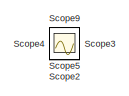
[diagram: root canvas - part 1/2, top right region]
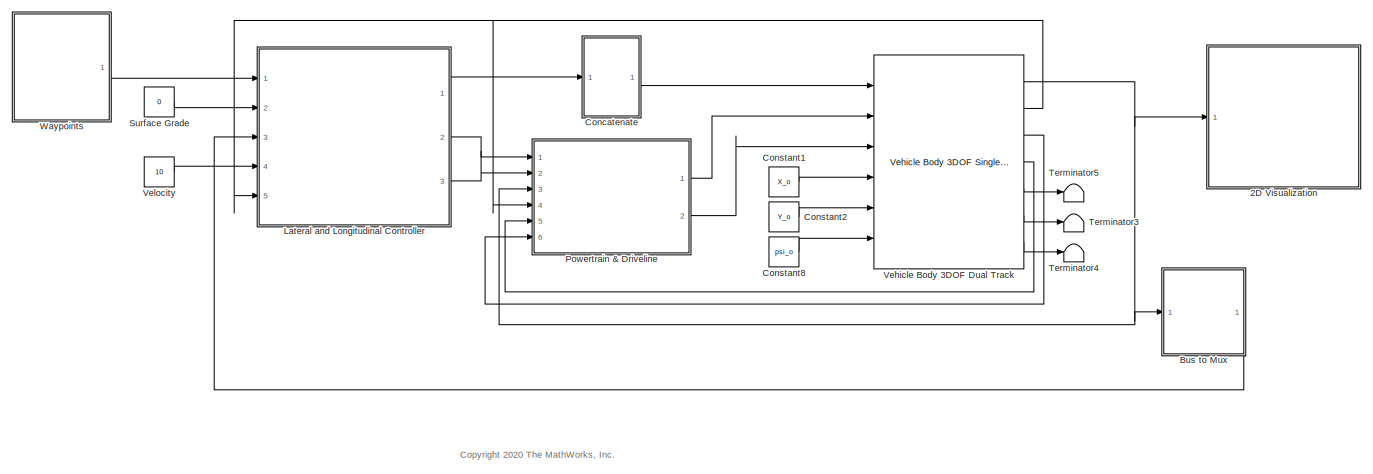
[diagram: root canvas - part 2/2, center side, full height]
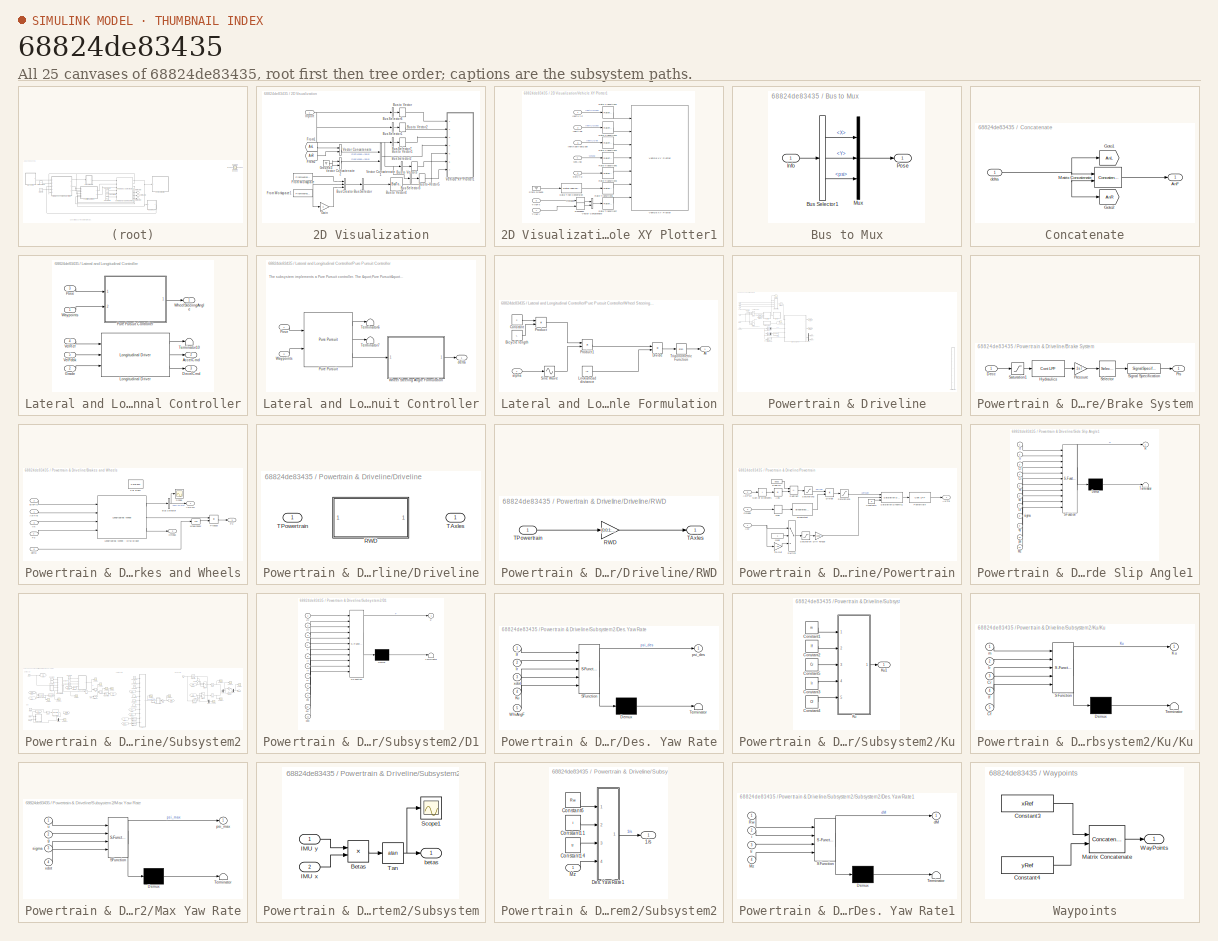
[diagram: thumbnail index - all 25 canvases of the model, root first then tree order]
MODEL slx_68824de83435
KIND model
CONFIG AbsTol = auto
CONFIG EnableMultiTasking = off
CONFIG FixedStep = auto
CONFIG MaxStep = auto
CONFIG MinStep = auto
CONFIG PreLoadFcn = setUpPurePursuitCurveHighVel
CONFIG RelTol = 1e-3
CONFIG SampleTimeConstraint = Unconstrained
CONFIG SolverName = VariableStepAuto
CONFIG StartTime = 0.0
CONFIG StopTime = Ts
WORKSPACE source: mxarray member
WORKSPACE firstWarning = 0
WORKSPACE originalScenarioChecksum = 'F73A6DA3C723D3CA73A6F931B7A52A9C'
BLOCK [SubSystem] 2D Visualization
  Ports = [1]
  RequestExecContextInheritance = off
BLOCK [BusCreator] 2D Visualization/Bus Creator
  DisplayOption = bar
  InheritFromInputs = on
  Inputs = 3
  Ports = [3, 1]
BLOCK [BusSelector] 2D Visualization/Bus Selector
  OutputAsBus = on
  OutputSignals = signal1,signal2,signal3
  Ports = [1, 1]
BLOCK [BusSelector] 2D Visualization/Bus Selector1
  OutputAsBus = on
  OutputSignals = InertFrm.Cg.Ang.phi,InertFrm.Cg.Ang.theta,InertFrm.Cg.Ang.psi
  Ports = [1, 1]
BLOCK [BusSelector] 2D Visualization/Bus Selector2
  OutputAsBus = on
  OutputSignals = PwrInfo.PwrTrnsfrd.PwrFwFLx,PwrInfo.PwrTrnsfrd.PwrFwFRx,PwrInfo.PwrTrnsfrd.PwrFwRLx,PwrInfo.PwrTrnsfrd.PwrFwRRx
  Ports = [1, 1]
BLOCK [BusSelector] 2D Visualization/Bus Selector3
  OutputAsBus = on
  OutputSignals = BdyFrm.Forces.FrntAxl.Lft.Fy,BdyFrm.Forces.FrntAxl.Rght.Fy,BdyFrm.Forces.RearAxl.Lft.Fy,BdyFrm.Forces.RearAxl.Rght.Fy
  Ports = [1, 1]
BLOCK [BusSelector] 2D Visualization/Bus Selector6
  OutputAsBus = on
  OutputSignals = InertFrm.Geom.Disp.X,InertFrm.Geom.Disp.Y,InertFrm.Geom.Disp.Z
  Ports = [1, 1]
BLOCK [BusSelector] 2D Visualization/Bus Selector7
  OutputAsBus = on
  OutputSignals = InertFrm.Geom.Vel.Xdot,InertFrm.Geom.Vel.Ydot,InertFrm.Geom.Vel.Zdot
  Ports = [1, 1]
BLOCK [BusToVector] 2D Visualization/Bus to Vector
BLOCK [BusToVector] 2D Visualization/Bus to Vector1
BLOCK [BusToVector] 2D Visualization/Bus to Vector2
BLOCK [BusToVector] 2D Visualization/Bus to Vector3
BLOCK [BusToVector] 2D Visualization/Bus to Vector4
BLOCK [BusToVector] 2D Visualization/Bus to Vector5
BLOCK [FromWorkspace] 2D Visualization/From Workspace
  VariableName = [tRef xRef]
BLOCK [FromWorkspace] 2D Visualization/From Workspace1
  VariableName = [tRef yRef]
BLOCK [From] 2D Visualization/From1
  GotoTag = AnL
  TagVisibility = global
BLOCK [From] 2D Visualization/From2
  GotoTag = AnR
  TagVisibility = global
BLOCK [Gain] 2D Visualization/Gain
  Gain = 0
BLOCK [Ground] 2D Visualization/Ground3
BLOCK [Inport] 2D Visualization/Inport
BLOCK [Concatenate] 2D Visualization/Vector Concatenate
  Ports = [2, 1]
BLOCK [Concatenate] 2D Visualization/Vector Concatenate1
  Ports = [2, 1]
BLOCK [Concatenate] 2D Visualization/Vector Concatenate2
  Ports = [2, 1]
BLOCK [SubSystem] 2D Visualization/Vehicle XY Plotter1
  Ports = [7]
  RequestExecContextInheritance = off
BLOCK [DataTypeConversion] 2D Visualization/Vehicle XY Plotter1/Data Type Conversion
  OutDataTypeStr = double
  RndMeth = Floor
  SaturateOnIntegerOverflow = off
BLOCK [Inport] 2D Visualization/Vehicle XY Plotter1/InertAng
  Port = 2
BLOCK [Inport] 2D Visualization/Vehicle XY Plotter1/InertXYZ
BLOCK [Inport] 2D Visualization/Vehicle XY Plotter1/InertXdotYdotZdot
  Port = 3
BLOCK [RateTransition] 2D Visualization/Vehicle XY Plotter1/Rate Transition1
  Deterministic = off
  OutPortSampleTime = pltDT
BLOCK [RateTransition] 2D Visualization/Vehicle XY Plotter1/Rate Transition2
  Deterministic = off
  OutPortSampleTime = pltDT
BLOCK [RateTransition] 2D Visualization/Vehicle XY Plotter1/Rate Transition3
  Deterministic = off
  OutPortSampleTime = pltDT
BLOCK [RateTransition] 2D Visualization/Vehicle XY Plotter1/Rate Transition4
  Deterministic = off
  OutPortSampleTime = pltDT
BLOCK [RateTransition] 2D Visualization/Vehicle XY Plotter1/Rate Transition5
  Deterministic = off
  OutPortSampleTime = pltDT
BLOCK [RateTransition] 2D Visualization/Vehicle XY Plotter1/Rate Transition6
  Deterministic = off
  OutPortSampleTime = pltDT
BLOCK [RateTransition] 2D Visualization/Vehicle XY Plotter1/Rate Transition7
  Deterministic = off
  OutPortSampleTime = pltDT
BLOCK [Inport] 2D Visualization/Vehicle XY Plotter1/RefXYZ
  Port = 5
BLOCK [Reshape] 2D Visualization/Vehicle XY Plotter1/Reshape
  OutputDimensionality = Row vector (2-D)
  Ports = [1, 1]
BLOCK [Reshape] 2D Visualization/Vehicle XY Plotter1/Reshape1
  OutputDimensionality = Row vector (2-D)
  Ports = [1, 1]
BLOCK [Ground] 2D Visualization/Vehicle XY Plotter1/Stats Ground
BLOCK [Inport] 2D Visualization/Vehicle XY Plotter1/TireFx
  Port = 6
BLOCK [Inport] 2D Visualization/Vehicle XY Plotter1/TireFy
  Port = 7
BLOCK [Concatenate] 2D Visualization/Vehicle XY Plotter1/Vector Concatenate
  Mode = Multidimensional array
  Ports = [2, 1]
BLOCK [Reference] 2D Visualization/Vehicle XY Plotter1/Vehicle XY Plotter  REF=vehdynlibviscommon/Vehicle XY Plotter
  Ports = [7]
  SourceBlock = vehdynlibviscommon/Vehicle XY Plotter
  SourceProductBaseCode = VE
  SourceType = Vehicle XY Plotter
BLOCK [Inport] 2D Visualization/Vehicle XY Plotter1/WhlAng
  Port = 4
BLOCK [SubSystem] Bus to Mux
  Ports = [1, 1]
  RequestExecContextInheritance = off
BLOCK [BusSelector] Bus to Mux/Bus Selector1
  OutputSignals = InertFrm.Cg.Disp.X,InertFrm.Cg.Disp.Y,InertFrm.Cg.Ang.psi
  Ports = [1, 3]
BLOCK [Inport] Bus to Mux/Info
BLOCK [Mux] Bus to Mux/Mux
  DisplayOption = bar
  Inputs = 3
  Ports = [3, 1]
BLOCK [Outport] Bus to Mux/Pose
BLOCK [SubSystem] Concatenate
  Ports = [1, 1]
  RequestExecContextInheritance = off
BLOCK [Outport] Concatenate/AnF
  VectorParamsAs1DForOutWhenUnconnected = off
BLOCK [Goto] Concatenate/Goto1
  GotoTag = AnL
  TagVisibility = global
BLOCK [Goto] Concatenate/Goto2
  GotoTag = AnR
  TagVisibility = global
BLOCK [Concatenate] Concatenate/Matrix Concatenate
  Ports = [2, 1]
BLOCK [Inport] Concatenate/delta
BLOCK [Constant] Constant1
  Value = X_o
BLOCK [Constant] Constant2
  Value = Y_o
BLOCK [Constant] Constant8
  Value = psi_o
BLOCK [SubSystem] Lateral and Longitudinal Controller
  Ports = [5, 3]
  RequestExecContextInheritance = off
BLOCK [Outport] Lateral and Longitudinal Controller/AccelCmd
  Port = 2
BLOCK [Outport] Lateral and Longitudinal Controller/DecelCmd
  Port = 3
BLOCK [Inport] Lateral and Longitudinal Controller/Grade
  Port = 2
BLOCK [Reference] Lateral and Longitudinal Controller/Longitudinal Driver  REF=autolibshared/Longitudinal Driver
  Ports = [3, 3]
  SourceBlock = autolibshared/Longitudinal Driver
  SourceProductBaseCode = PW,MT,UV,VE,VP
  SourceType = Longitudinal Driver
BLOCK [Inport] Lateral and Longitudinal Controller/Pose
  Port = 3
BLOCK [SubSystem] Lateral and Longitudinal Controller/Pure Pursuit Controller
  Ports = [2, 1]
  RequestExecContextInheritance = off
BLOCK [Inport] Lateral and Longitudinal Controller/Pure Pursuit Controller/Pose
BLOCK [Reference] Lateral and Longitudinal Controller/Pure Pursuit Controller/Pure Pursuit  REF=robotalgslib/Pure Pursuit
  Ports = [2, 3]
  SourceBlock = robotalgslib/Pure Pursuit
  SourceProductBaseCode = NV,RO
  SourceType = nav.slalgs.internal.PurePursuit
BLOCK [Terminator] Lateral and Longitudinal Controller/Pure Pursuit Controller/Terminator6
BLOCK [Terminator] Lateral and Longitudinal Controller/Pure Pursuit Controller/Terminator7
BLOCK [Inport] Lateral and Longitudinal Controller/Pure Pursuit Controller/Waypoints
  Port = 2
BLOCK [SubSystem] Lateral and Longitudinal Controller/Pure Pursuit Controller/Wheel Steering Angle Formulation
  Ports = [1, 1]
  RequestExecContextInheritance = off
BLOCK [Outport] Lateral and Longitudinal Controller/Pure Pursuit Controller/Wheel Steering Angle Formulation/Al
BLOCK [Constant] Lateral and Longitudinal Controller/Pure Pursuit Controller/Wheel Steering Angle Formulation/Bicycle length
  Value = L
BLOCK [Constant] Lateral and Longitudinal Controller/Pure Pursuit Controller/Wheel Steering Angle Formulation/Constant
  Value = 2
BLOCK [Product] Lateral and Longitudinal Controller/Pure Pursuit Controller/Wheel Steering Angle Formulation/Divide
  Inputs = */
  Ports = [2, 1]
BLOCK [Constant] Lateral and Longitudinal Controller/Pure Pursuit Controller/Wheel Steering Angle Formulation/Lookahead distance
  Value = ld
BLOCK [Product] Lateral and Longitudinal Controller/Pure Pursuit Controller/Wheel Steering Angle Formulation/Product
  Ports = [2, 1]
BLOCK [Product] Lateral and Longitudinal Controller/Pure Pursuit Controller/Wheel Steering Angle Formulation/Product1
  Ports = [2, 1]
BLOCK [Sin] Lateral and Longitudinal Controller/Pure Pursuit Controller/Wheel Steering Angle Formulation/Sine Wave
  Ports = [1, 1]
  SampleTime = 0
  TimeSource = Use external signal
BLOCK [Trigonometry] Lateral and Longitudinal Controller/Pure Pursuit Controller/Wheel Steering Angle Formulation/Trigonometric Function
  Operator = atan
  Ports = [1, 1]
BLOCK [Inport] Lateral and Longitudinal Controller/Pure Pursuit Controller/Wheel Steering Angle Formulation/alpha
  NameLocation = top
BLOCK [Outport] Lateral and Longitudinal Controller/Pure Pursuit Controller/delta
BLOCK [Terminator] Lateral and Longitudinal Controller/Terminator10
BLOCK [Inport] Lateral and Longitudinal Controller/VelFdbk
  Port = 5
BLOCK [Inport] Lateral and Longitudinal Controller/VelRef
  Port = 4
BLOCK [Inport] Lateral and Longitudinal Controller/Waypoints
BLOCK [Outport] Lateral and Longitudinal Controller/WheelSteeringAngle
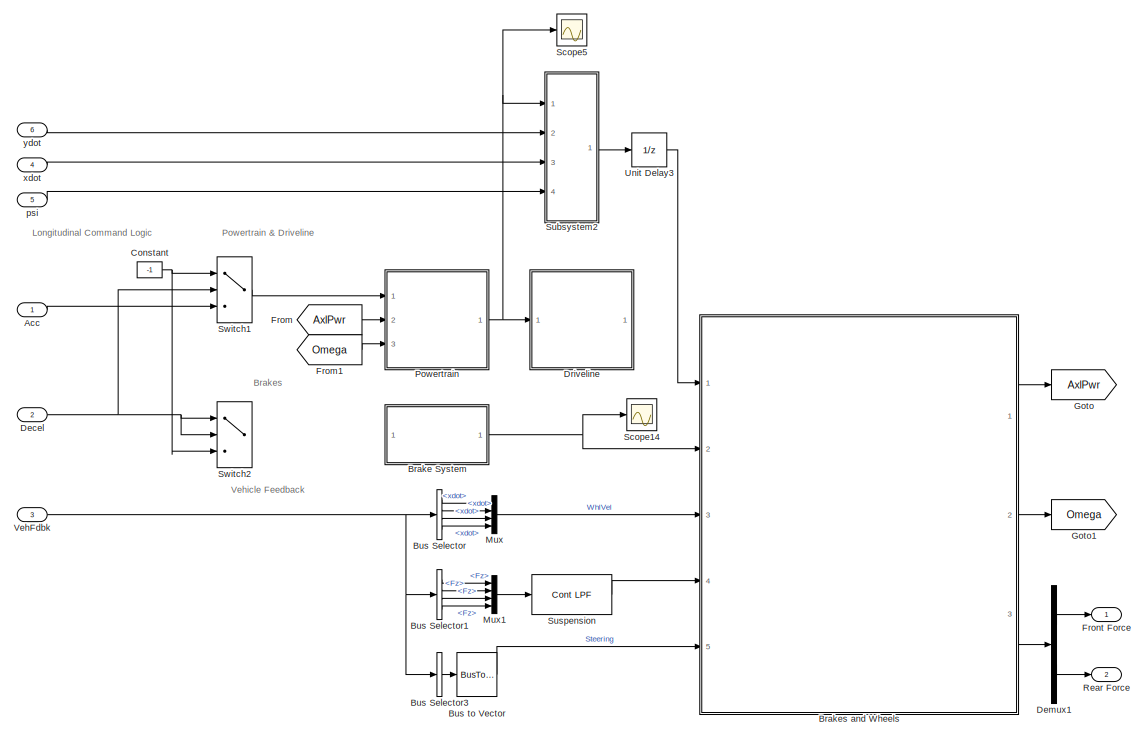
[diagram: Powertrain & Driveline - part 1/2, top left region]
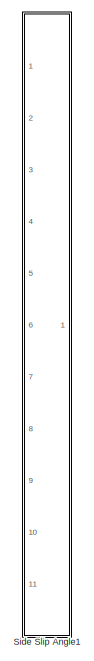
[diagram: Powertrain & Driveline - part 2/2, bottom right region]
BLOCK [SubSystem] Powertrain & Driveline
  Ports = [6, 2]
  RequestExecContextInheritance = off
BLOCK [Inport] Powertrain & Driveline/Acc
BLOCK [SubSystem] Powertrain & Driveline/Brake System
  Ports = [1, 1]
  RequestExecContextInheritance = off
BLOCK [Inport] Powertrain & Driveline/Brake System/Decc
BLOCK [Reference] Powertrain & Driveline/Brake System/Hydraulics  REF=autolibutils/Cont LPF
  Ports = [1, 1]
  SourceBlock = autolibutils/Cont LPF
  SourceProductBaseCode = PW,MT,UV,VE,VP
BLOCK [Gain] Powertrain & Driveline/Brake System/Pressure
  Gain = 2e7
BLOCK [Outport] Powertrain & Driveline/Brake System/Prs
  VectorParamsAs1DForOutWhenUnconnected = off
BLOCK [Saturate] Powertrain & Driveline/Brake System/Saturation1
  LowerLimit = 0
  UpperLimit = inf
  ZeroCross = off
BLOCK [Selector] Powertrain & Driveline/Brake System/Selector
  IndexOptions = Index vector (dialog)
  Indices = [1 1 1 1]
  InputPortWidth = 1
  OutputSizes = 1
  Ports = [1, 1]
BLOCK [SignalSpecification] Powertrain & Driveline/Brake System/Signal Specification
  Unit = Pa
BLOCK [SubSystem] Powertrain & Driveline/Brakes and Wheels
  Ports = [5, 3]
  RequestExecContextInheritance = off
  TreatAsAtomicUnit = on
BLOCK [Outport] Powertrain & Driveline/Brakes and Wheels/AxlPwr
  ConcatenationDimension = 1
  VectorParamsAs1DForOutWhenUnconnected = off
BLOCK [Inport] Powertrain & Driveline/Brakes and Wheels/AxlTrq
  Partition = on
  PartitionDimension = 1
  PartitionOffset = 0
  PartitionWidth = 1
BLOCK [Inport] Powertrain & Driveline/Brakes and Wheels/BrkPrs
  Partition = on
  PartitionDimension = 1
  PartitionOffset = 0
  PartitionWidth = 1
  Port = 2
BLOCK [BusSelector] Powertrain & Driveline/Brakes and Wheels/Bus Selector
  OutputSignals = PwrInfo.PwrTrnsfrd.PwrAxlTrq
  Ports = [1, 1]
BLOCK [ForEach] Powertrain & Driveline/Brakes and Wheels/For Each
  DisableCoverage = on
  Ports = []
BLOCK [Outport] Powertrain & Driveline/Brakes and Wheels/Fx
  ConcatenationDimension = 1
  Port = 3
  VectorParamsAs1DForOutWhenUnconnected = off
BLOCK [Inport] Powertrain & Driveline/Brakes and Wheels/Fz
  Partition = on
  PartitionDimension = 1
  PartitionOffset = 0
  PartitionWidth = 1
  Port = 4
BLOCK [Reference] Powertrain & Driveline/Brakes and Wheels/Longitudinal Wheel - Disc Brake  REF=autolibshared/Longitudinal Wheel
  Ports = [4, 3]
  SourceBlock = autolibshared/Longitudinal Wheel
  SourceProductBaseCode = PW,MT,UV,VE,VP
  SourceType = Longitudinal Wheel
BLOCK [Outport] Powertrain & Driveline/Brakes and Wheels/Omega
  ConcatenationDimension = 1
  Port = 2
  VectorParamsAs1DForOutWhenUnconnected = off
BLOCK [Product] Powertrain & Driveline/Brakes and Wheels/Product
  Ports = [2, 1]
BLOCK [Scope] Powertrain & Driveline/Brakes and Wheels/Scope
  Floating = off
  NumInputPorts = 1
  Ports = [1]
  ScopeSpecificationString = Simulink.scopes.TimeScopeBlockCfg('CurrentConfiguration', extmgr.ConfigurationSet(extmgr.Configuration('Core','General UI',true),extmgr.Configuration('Core','Source UI',true),extmgr.Configuration('Sources','WiredSimulink',true,'DataLoggingVariableName','ScopeData21'),extmgr.Configuration('Visuals','Time Domain',true,'SerializedDisplays',{struct('MinYLimReal','-21453.63183','MaxYLimReal','188714.31...<+1439ch>
BLOCK [Inport] Powertrain & Driveline/Brakes and Wheels/Vx
  Partition = on
  PartitionDimension = 1
  PartitionOffset = 0
  PartitionWidth = 1
  Port = 3
BLOCK [Inport] Powertrain & Driveline/Brakes and Wheels/delta
  Partition = on
  PartitionDimension = 1
  PartitionOffset = 0
  PartitionWidth = 1
  Port = 5
BLOCK [Trigonometry] Powertrain & Driveline/Brakes and Wheels/wheel2body
  Operator = cos
  Ports = [1, 1]
BLOCK [BusSelector] Powertrain & Driveline/Bus Selector
  OutputSignals = BdyFrm.FrntAxl.Lft.Vel.xdot,BdyFrm.FrntAxl.Rght.Vel.xdot,BdyFrm.RearAxl.Lft.Vel.xdot,BdyFrm.RearAxl.Rght.Vel.xdot
  Ports = [1, 4]
BLOCK [BusSelector] Powertrain & Driveline/Bus Selector1
  OutputSignals = BdyFrm.Forces.FrntAxl.Lft.Fz,BdyFrm.Forces.FrntAxl.Rght.Fz,BdyFrm.Forces.RearAxl.Lft.Fz,BdyFrm.Forces.RearAxl.Rght.Fz
  Ports = [1, 4]
BLOCK [BusSelector] Powertrain & Driveline/Bus Selector3
  OutputAsBus = on
  OutputSignals = BdyFrm.FrntAxl.Steer.WhlAngFL,BdyFrm.FrntAxl.Steer.WhlAngFR,BdyFrm.RearAxl.Steer.WhlAngRL,BdyFrm.RearAxl.Steer.WhlAngRR
  Ports = [1, 1]
BLOCK [BusToVector] Powertrain & Driveline/Bus to Vector
BLOCK [Constant] Powertrain & Driveline/Constant
  Value = -1
BLOCK [Inport] Powertrain & Driveline/Decel
  Port = 2
BLOCK [Demux] Powertrain & Driveline/Demux1
  Outputs = [2 2]
  Ports = [1, 2]
BLOCK [SubSystem] Powertrain & Driveline/Driveline
  LabelModeActiveChoice = 0
  Ports = [1, 1]
  RequestExecContextInheritance = off
  Variant = on
  VariantControl = Variant1
  VariantControlMode = label
BLOCK [SubSystem] Powertrain & Driveline/Driveline/RWD
  Ports = [1, 1]
  RequestExecContextInheritance = off
  VariantControl = 0
BLOCK [Gain] Powertrain & Driveline/Driveline/RWD/RWD
  Gain = [0;0;1;1]
BLOCK [Outport] Powertrain & Driveline/Driveline/RWD/TAxles
  VectorParamsAs1DForOutWhenUnconnected = off
BLOCK [Inport] Powertrain & Driveline/Driveline/RWD/TPowertrain
BLOCK [Outport] Powertrain & Driveline/Driveline/TAxles
  VectorParamsAs1DForOutWhenUnconnected = off
BLOCK [Inport] Powertrain & Driveline/Driveline/TPowertrain
BLOCK [From] Powertrain & Driveline/From
  GotoTag = AxlPwr
BLOCK [From] Powertrain & Driveline/From1
  GotoTag = Omega
BLOCK [Outport] Powertrain & Driveline/Front Force
  VectorParamsAs1DForOutWhenUnconnected = off
BLOCK [Goto] Powertrain & Driveline/Goto
  GotoTag = AxlPwr
BLOCK [Goto] Powertrain & Driveline/Goto1
  GotoTag = Omega
BLOCK [Mux] Powertrain & Driveline/Mux
  DisplayOption = bar
  Ports = [4, 1]
BLOCK [Mux] Powertrain & Driveline/Mux1
  DisplayOption = bar
  Ports = [4, 1]
BLOCK [SubSystem] Powertrain & Driveline/Powertrain
  Ports = [3, 1]
  RequestExecContextInheritance = off
BLOCK [Abs] Powertrain & Driveline/Powertrain/Abs
  SaturateOnIntegerOverflow = off
  ZeroCross = off
BLOCK [Inport] Powertrain & Driveline/Powertrain/Acc
BLOCK [Inport] Powertrain & Driveline/Powertrain/AxlPwr
  Port = 2
BLOCK [Outport] Powertrain & Driveline/Powertrain/AxlTrq
  VectorParamsAs1DForOutWhenUnconnected = off
BLOCK [Constant] Powertrain & Driveline/Powertrain/Constant3
  Value = 0
BLOCK [Gain] Powertrain & Driveline/Powertrain/Diff Torque
  Gain = 1000
BLOCK [Product] Powertrain & Driveline/Powertrain/Divide
  Inputs = */
  Ports = [2, 1]
BLOCK [Constant] Powertrain & Driveline/Powertrain/EngPwr
  Value = 80e3
BLOCK [Constant] Powertrain & Driveline/Powertrain/Gear
  SampleTime = -1
BLOCK [MinMax] Powertrain & Driveline/Powertrain/Max
  Function = max
  Ports = [1, 1]
  ZeroCross = off
BLOCK [Inport] Powertrain & Driveline/Powertrain/Omega
  Port = 3
BLOCK [Reference] Powertrain & Driveline/Powertrain/Powertrain  REF=autolibutils/Cont LPF
  Ports = [1, 1]
  SourceBlock = autolibutils/Cont LPF
  SourceProductBaseCode = PW,MT,UV,VE,VP
BLOCK [Saturate] Powertrain & Driveline/Powertrain/Saturation
  LowerLimit = 0
  UpperLimit = inf
  ZeroCross = off
BLOCK [Reference] Powertrain & Driveline/Powertrain/Saturation Dynamic1  REF=simulink/Discontinuities/Saturation
Dynamic
  Ports = [3, 1]
  SourceBlock = simulink/Discontinuities/Saturation\nDynamic
  SourceProductBaseCode = SL
  SourceType = Saturation Dynamic
BLOCK [Saturate] Powertrain & Driveline/Powertrain/Saturation2
  LowerLimit = 100
  UpperLimit = inf
  ZeroCross = off
BLOCK [Saturate] Powertrain & Driveline/Powertrain/Saturation3
  LowerLimit = 0
  UpperLimit = 800
  ZeroCross = off
BLOCK [Sum] Powertrain & Driveline/Powertrain/Subtract
  IconShape = rectangular
  Inputs = +-
  Ports = [2, 1]
BLOCK [Sum] Powertrain & Driveline/Powertrain/Sum of Elements
  IconShape = rectangular
  Inputs = +
  Ports = [1, 1]
BLOCK [Switch] Powertrain & Driveline/Powertrain/Switch
  InputSameDT = off
  SaturateOnIntegerOverflow = off
  ZeroCross = off
BLOCK [Gain] Powertrain & Driveline/Powertrain/Tip Out
  Gain = -10
BLOCK [Reference] Powertrain & Driveline/Powertrain/div0protect  REF=autolibutils/div0protect - poly
  Ports = [1, 1]
  SourceBlock = autolibutils/div0protect - poly
  SourceProductBaseCode = PW,MT,UV,VE,VP
BLOCK [Outport] Powertrain & Driveline/Rear Force
  Port = 2
  VectorParamsAs1DForOutWhenUnconnected = off
BLOCK [Scope] Powertrain & Driveline/Scope14
  Floating = off
  NumInputPorts = 1
  Ports = [1]
  ScopeSpecificationString = Simulink.scopes.TimeScopeBlockCfg('CurrentConfiguration', extmgr.ConfigurationSet(extmgr.Configuration('Core','General UI',true),extmgr.Configuration('Core','Source UI',true),extmgr.Configuration('Sources','WiredSimulink',true,'DataLoggingVariableName','ScopeData1'),extmgr.Configuration('Visuals','Time Domain',true,'SerializedDisplays',{struct('MinYLimReal','-547886.91335','MaxYLimReal','4930982.2...<+1518ch>
BLOCK [Scope] Powertrain & Driveline/Scope5
  Floating = off
  NumInputPorts = 1
  Ports = [1]
  ScopeSpecificationString = Simulink.scopes.TimeScopeBlockCfg('CurrentConfiguration', extmgr.ConfigurationSet(extmgr.Configuration('Core','General UI',true),extmgr.Configuration('Core','Source UI',true),extmgr.Configuration('Sources','WiredSimulink',true,'DataLoggingVariableName','ScopeData27'),extmgr.Configuration('Visuals','Time Domain',true,'SerializedDisplays',{struct('MinYLimReal','796.01328','MaxYLimReal','808.67875','...<+1483ch>
BLOCK [SubSystem] Powertrain & Driveline/Side Slip Angle1
  Commented = on
  ErrorFcn = Stateflow.Translate.translate
  PermitHierarchicalResolution = ExplicitOnly
  Ports = [11, 1]
  RequestExecContextInheritance = off
  SFBlockType = MATLAB Function
  TreatAsAtomicUnit = on
BLOCK [Demux] Powertrain & Driveline/Side Slip Angle1/ Demux 
  Outputs = 1
  Ports = [1, 1]
BLOCK [S-Function] Powertrain & Driveline/Side Slip Angle1/ SFunction 
  EnableBusSupport = on
  FunctionName = sf_sfun
  PortCounts = [11 2]
  Ports = [11, 2]
  SFcnIsStateOwnerBlock = off
  SFunctionDeploymentMode = off
  Tag = Stateflow S-Function 5
BLOCK [Terminator] Powertrain & Driveline/Side Slip Angle1/ Terminator 
BLOCK [Inport] Powertrain & Driveline/Side Slip Angle1/Cf
  Port = 3
BLOCK [Inport] Powertrain & Driveline/Side Slip Angle1/Cr
  Port = 4
BLOCK [Inport] Powertrain & Driveline/Side Slip Angle1/Iz
  Port = 7
BLOCK [Inport] Powertrain & Driveline/Side Slip Angle1/Mz
  Port = 11
BLOCK [Outport] Powertrain & Driveline/Side Slip Angle1/R
BLOCK [Inport] Powertrain & Driveline/Side Slip Angle1/lf
BLOCK [Inport] Powertrain & Driveline/Side Slip Angle1/lr
  Port = 2
BLOCK [Inport] Powertrain & Driveline/Side Slip Angle1/m
  Port = 5
BLOCK [Inport] Powertrain & Driveline/Side Slip Angle1/psi
  Port = 10
BLOCK [Inport] Powertrain & Driveline/Side Slip Angle1/sigma
  Port = 8
BLOCK [Inport] Powertrain & Driveline/Side Slip Angle1/vx
  Port = 6
BLOCK [Inport] Powertrain & Driveline/Side Slip Angle1/vy
  Port = 9
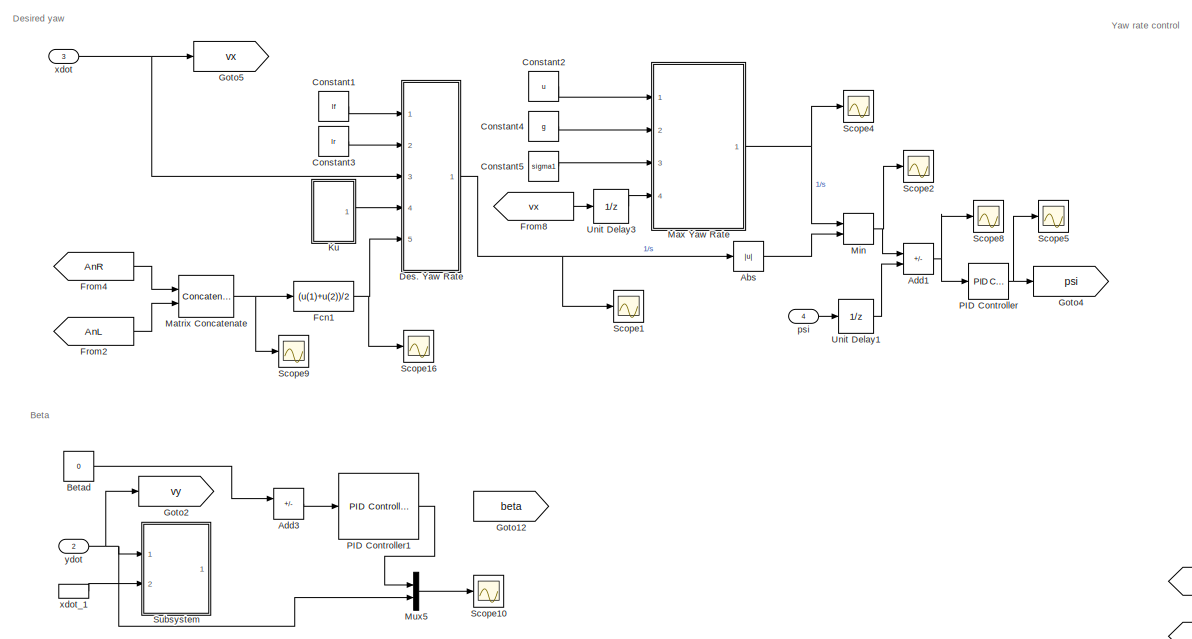
[diagram: Powertrain & Driveline/Subsystem2 - part 1/2, left side, full height]
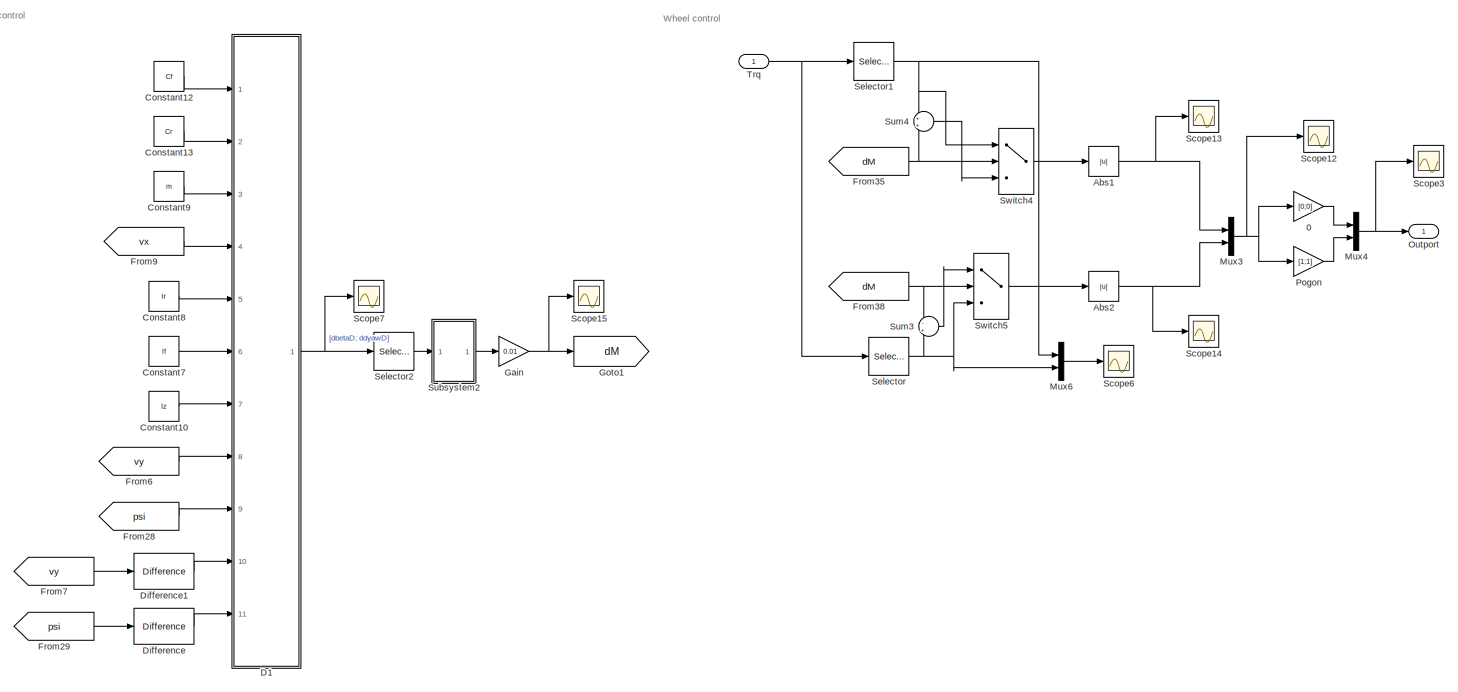
[diagram: Powertrain & Driveline/Subsystem2 - part 2/2, right side, full height]
BLOCK [SubSystem] Powertrain & Driveline/Subsystem2
  Ports = [4, 1]
  RequestExecContextInheritance = off
BLOCK [Gain] Powertrain & Driveline/Subsystem2/0
  Gain = [0;0]
BLOCK [Abs] Powertrain & Driveline/Subsystem2/Abs
  SaturateOnIntegerOverflow = off
BLOCK [Abs] Powertrain & Driveline/Subsystem2/Abs1
  SaturateOnIntegerOverflow = off
BLOCK [Abs] Powertrain & Driveline/Subsystem2/Abs2
  SaturateOnIntegerOverflow = off
BLOCK [Sum] Powertrain & Driveline/Subsystem2/Add1
  IconShape = rectangular
  Inputs = +-
  Ports = [2, 1]
BLOCK [Sum] Powertrain & Driveline/Subsystem2/Add3
  Commented = on
  IconShape = rectangular
  Inputs = +-
  Ports = [2, 1]
BLOCK [Constant] Powertrain & Driveline/Subsystem2/Betad
  Value = 0
BLOCK [Constant] Powertrain & Driveline/Subsystem2/Constant1
  Value = lf
BLOCK [Constant] Powertrain & Driveline/Subsystem2/Constant10
  Value = Iz
BLOCK [Constant] Powertrain & Driveline/Subsystem2/Constant12
  Value = Cf
BLOCK [Constant] Powertrain & Driveline/Subsystem2/Constant13
  Value = Cr
BLOCK [Constant] Powertrain & Driveline/Subsystem2/Constant2
  Value = u
BLOCK [Constant] Powertrain & Driveline/Subsystem2/Constant3
  Value = lr
BLOCK [Constant] Powertrain & Driveline/Subsystem2/Constant4
  Value = g
BLOCK [Constant] Powertrain & Driveline/Subsystem2/Constant5
  Value = sigma1
BLOCK [Constant] Powertrain & Driveline/Subsystem2/Constant7
  Value = lf
BLOCK [Constant] Powertrain & Driveline/Subsystem2/Constant8
  Value = lr
BLOCK [Constant] Powertrain & Driveline/Subsystem2/Constant9
  Value = m
BLOCK [SubSystem] Powertrain & Driveline/Subsystem2/D1
  ErrorFcn = Stateflow.Translate.translate
  PermitHierarchicalResolution = ExplicitOnly
  Ports = [11, 1]
  RequestExecContextInheritance = off
  SFBlockType = MATLAB Function
  TreatAsAtomicUnit = on
BLOCK [Demux] Powertrain & Driveline/Subsystem2/D1/ Demux 
  Outputs = 1
  Ports = [1, 1]
BLOCK [S-Function] Powertrain & Driveline/Subsystem2/D1/ SFunction 
  EnableBusSupport = on
  FunctionName = sf_sfun
  PortCounts = [11 2]
  Ports = [11, 2]
  SFcnIsStateOwnerBlock = off
  SFunctionDeploymentMode = off
  Tag = Stateflow S-Function 3
BLOCK [Terminator] Powertrain & Driveline/Subsystem2/D1/ Terminator 
BLOCK [Inport] Powertrain & Driveline/Subsystem2/D1/Cf
BLOCK [Inport] Powertrain & Driveline/Subsystem2/D1/Cr
  Port = 2
BLOCK [Outport] Powertrain & Driveline/Subsystem2/D1/F
BLOCK [Inport] Powertrain & Driveline/Subsystem2/D1/Iz
  Port = 7
BLOCK [Inport] Powertrain & Driveline/Subsystem2/D1/dpsi
  Port = 11
BLOCK [Inport] Powertrain & Driveline/Subsystem2/D1/dvy
  Port = 10
BLOCK [Inport] Powertrain & Driveline/Subsystem2/D1/lf
  Port = 6
BLOCK [Inport] Powertrain & Driveline/Subsystem2/D1/lr
  Port = 5
BLOCK [Inport] Powertrain & Driveline/Subsystem2/D1/m
  Port = 3
BLOCK [Inport] Powertrain & Driveline/Subsystem2/D1/psi
  Port = 9
BLOCK [Inport] Powertrain & Driveline/Subsystem2/D1/v
  Port = 4
BLOCK [Inport] Powertrain & Driveline/Subsystem2/D1/vy
  Port = 8
BLOCK [SubSystem] Powertrain & Driveline/Subsystem2/Des. Yaw Rate
  ErrorFcn = Stateflow.Translate.translate
  PermitHierarchicalResolution = ExplicitOnly
  Ports = [5, 1]
  RequestExecContextInheritance = off
  SFBlockType = MATLAB Function
  TreatAsAtomicUnit = on
BLOCK [Demux] Powertrain & Driveline/Subsystem2/Des. Yaw Rate/ Demux 
  Outputs = 1
  Ports = [1, 1]
BLOCK [S-Function] Powertrain & Driveline/Subsystem2/Des. Yaw Rate/ SFunction 
  EnableBusSupport = on
  FunctionName = sf_sfun
  PortCounts = [5 2]
  Ports = [5, 2]
  SFcnIsStateOwnerBlock = off
  SFunctionDeploymentMode = off
  Tag = Stateflow S-Function 6
BLOCK [Terminator] Powertrain & Driveline/Subsystem2/Des. Yaw Rate/ Terminator 
BLOCK [Inport] Powertrain & Driveline/Subsystem2/Des. Yaw Rate/Ku
  Port = 4
BLOCK [Inport] Powertrain & Driveline/Subsystem2/Des. Yaw Rate/WhiAngF
  Port = 5
BLOCK [Inport] Powertrain & Driveline/Subsystem2/Des. Yaw Rate/lf
BLOCK [Inport] Powertrain & Driveline/Subsystem2/Des. Yaw Rate/lr
  Port = 2
BLOCK [Outport] Powertrain & Driveline/Subsystem2/Des. Yaw Rate/psi_des
BLOCK [Inport] Powertrain & Driveline/Subsystem2/Des. Yaw Rate/xdot
  Port = 3
BLOCK [Reference] Powertrain & Driveline/Subsystem2/Difference  REF=simulink/Discrete/Difference
  Ports = [1, 1]
  SourceBlock = simulink/Discrete/Difference
  SourceProductBaseCode = SL
  SourceType = Difference
BLOCK [Reference] Powertrain & Driveline/Subsystem2/Difference1  REF=simulink/Discrete/Difference
  Ports = [1, 1]
  SourceBlock = simulink/Discrete/Difference
  SourceProductBaseCode = SL
  SourceType = Difference
BLOCK [Fcn] Powertrain & Driveline/Subsystem2/Fcn1
  Expr = (u(1)+u(2))/2
BLOCK [From] Powertrain & Driveline/Subsystem2/From2
  GotoTag = AnL
  TagVisibility = global
BLOCK [From] Powertrain & Driveline/Subsystem2/From28
  GotoTag = psi
BLOCK [From] Powertrain & Driveline/Subsystem2/From29
  GotoTag = psi
BLOCK [From] Powertrain & Driveline/Subsystem2/From35
  GotoTag = dM
BLOCK [From] Powertrain & Driveline/Subsystem2/From38
  GotoTag = dM
BLOCK [From] Powertrain & Driveline/Subsystem2/From4
  GotoTag = AnR
  TagVisibility = global
BLOCK [From] Powertrain & Driveline/Subsystem2/From6
  GotoTag = vy
BLOCK [From] Powertrain & Driveline/Subsystem2/From7
  GotoTag = vy
BLOCK [From] Powertrain & Driveline/Subsystem2/From8
  GotoTag = vx
BLOCK [From] Powertrain & Driveline/Subsystem2/From9
  GotoTag = vx
BLOCK [Gain] Powertrain & Driveline/Subsystem2/Gain
  Gain = 0.01
BLOCK [Goto] Powertrain & Driveline/Subsystem2/Goto1
  GotoTag = dM
BLOCK [Goto] Powertrain & Driveline/Subsystem2/Goto12
  GotoTag = beta
BLOCK [Goto] Powertrain & Driveline/Subsystem2/Goto2
  GotoTag = vy
BLOCK [Goto] Powertrain & Driveline/Subsystem2/Goto4
  GotoTag = psi
BLOCK [Goto] Powertrain & Driveline/Subsystem2/Goto5
  GotoTag = vx
BLOCK [SubSystem] Powertrain & Driveline/Subsystem2/Ku
  Ports = [0, 1]
  RequestExecContextInheritance = off
BLOCK [Constant] Powertrain & Driveline/Subsystem2/Ku/Constant1
  Value = m
BLOCK [Constant] Powertrain & Driveline/Subsystem2/Ku/Constant2
  Value = lf
BLOCK [Constant] Powertrain & Driveline/Subsystem2/Ku/Constant3
  Value = lr
BLOCK [Constant] Powertrain & Driveline/Subsystem2/Ku/Constant4
  Value = Cf
BLOCK [Constant] Powertrain & Driveline/Subsystem2/Ku/Constant5
  Value = Cr
BLOCK [SubSystem] Powertrain & Driveline/Subsystem2/Ku/Ku
  ErrorFcn = Stateflow.Translate.translate
  PermitHierarchicalResolution = ExplicitOnly
  Ports = [5, 1]
  RequestExecContextInheritance = off
  SFBlockType = MATLAB Function
  TreatAsAtomicUnit = on
BLOCK [Demux] Powertrain & Driveline/Subsystem2/Ku/Ku/ Demux 
  Outputs = 1
  Ports = [1, 1]
BLOCK [S-Function] Powertrain & Driveline/Subsystem2/Ku/Ku/ SFunction 
  EnableBusSupport = on
  FunctionName = sf_sfun
  PortCounts = [5 2]
  Ports = [5, 2]
  SFcnIsStateOwnerBlock = off
  SFunctionDeploymentMode = off
  Tag = Stateflow S-Function 2
BLOCK [Terminator] Powertrain & Driveline/Subsystem2/Ku/Ku/ Terminator 
BLOCK [Inport] Powertrain & Driveline/Subsystem2/Ku/Ku/Cf
  Port = 5
BLOCK [Inport] Powertrain & Driveline/Subsystem2/Ku/Ku/Cr
  Port = 3
BLOCK [Outport] Powertrain & Driveline/Subsystem2/Ku/Ku/Ku
BLOCK [Inport] Powertrain & Driveline/Subsystem2/Ku/Ku/lf
  Port = 4
BLOCK [Inport] Powertrain & Driveline/Subsystem2/Ku/Ku/lr
  Port = 2
BLOCK [Inport] Powertrain & Driveline/Subsystem2/Ku/Ku/m
BLOCK [Outport] Powertrain & Driveline/Subsystem2/Ku/Ku1
BLOCK [Concatenate] Powertrain & Driveline/Subsystem2/Matrix Concatenate
  Ports = [2, 1]
BLOCK [SubSystem] Powertrain & Driveline/Subsystem2/Max Yaw Rate
  ErrorFcn = Stateflow.Translate.translate
  PermitHierarchicalResolution = ExplicitOnly
  Ports = [4, 1]
  RequestExecContextInheritance = off
  SFBlockType = MATLAB Function
  TreatAsAtomicUnit = on
BLOCK [Demux] Powertrain & Driveline/Subsystem2/Max Yaw Rate/ Demux 
  Outputs = 1
  Ports = [1, 1]
BLOCK [S-Function] Powertrain & Driveline/Subsystem2/Max Yaw Rate/ SFunction 
  EnableBusSupport = on
  FunctionName = sf_sfun
  PortCounts = [4 2]
  Ports = [4, 2]
  SFcnIsStateOwnerBlock = off
  SFunctionDeploymentMode = off
  Tag = Stateflow S-Function 4
BLOCK [Terminator] Powertrain & Driveline/Subsystem2/Max Yaw Rate/ Terminator 
BLOCK [Inport] Powertrain & Driveline/Subsystem2/Max Yaw Rate/g
  Port = 2
BLOCK [Outport] Powertrain & Driveline/Subsystem2/Max Yaw Rate/psi_max
BLOCK [Inport] Powertrain & Driveline/Subsystem2/Max Yaw Rate/sigma
  Port = 3
BLOCK [Inport] Powertrain & Driveline/Subsystem2/Max Yaw Rate/u
BLOCK [Inport] Powertrain & Driveline/Subsystem2/Max Yaw Rate/xdot
  Port = 4
BLOCK [MinMax] Powertrain & Driveline/Subsystem2/Min
  Inputs = 2
  Ports = [2, 1]
BLOCK [Mux] Powertrain & Driveline/Subsystem2/Mux3
  DisplayOption = bar
  Inputs = 2
  Ports = [2, 1]
BLOCK [Mux] Powertrain & Driveline/Subsystem2/Mux4
  DisplayOption = bar
  Inputs = 2
  Ports = [2, 1]
BLOCK [Mux] Powertrain & Driveline/Subsystem2/Mux5
  DisplayOption = bar
  Inputs = 2
  Ports = [2, 1]
BLOCK [Mux] Powertrain & Driveline/Subsystem2/Mux6
  DisplayOption = bar
  Inputs = 2
  Ports = [2, 1]
BLOCK [Outport] Powertrain & Driveline/Subsystem2/Outport
BLOCK [Reference] Powertrain & Driveline/Subsystem2/PID Controller  REF=pid_lib/PID Controller
  Ports = [1, 1]
  SourceBlock = pid_lib/PID Controller
  SourceProductBaseCode = SL
  SourceType = PID 1dof
BLOCK [Reference] Powertrain & Driveline/Subsystem2/PID Controller1  REF=pid_lib/PID Controller
  Commented = on
  Ports = [1, 1]
  SourceBlock = pid_lib/PID Controller
  SourceProductBaseCode = SL
  SourceType = PID 1dof
BLOCK [Gain] Powertrain & Driveline/Subsystem2/Pogon
  Gain = [1;1]
BLOCK [Scope] Powertrain & Driveline/Subsystem2/Scope1
  Floating = off
  NumInputPorts = 1
  Ports = [1]
  ScopeSpecificationString = Simulink.scopes.TimeScopeBlockCfg('CurrentConfiguration', extmgr.ConfigurationSet(extmgr.Configuration('Core','General UI',true),extmgr.Configuration('Core','Source UI',true),extmgr.Configuration('Sources','WiredSimulink',true,'DataLoggingVariableName','ScopeData3'),extmgr.Configuration('Visuals','Time Domain',true,'SerializedDisplays',{struct('MinYLimReal','-7.62667','MaxYLimReal','7.0712','YLabe...<+1390ch>
BLOCK [Scope] Powertrain & Driveline/Subsystem2/Scope10
  Floating = off
  NumInputPorts = 1
  Ports = [1]
  ScopeSpecificationString = Simulink.scopes.TimeScopeBlockCfg('CurrentConfiguration', extmgr.ConfigurationSet(extmgr.Configuration('Core','General UI',true),extmgr.Configuration('Core','Source UI',true),extmgr.Configuration('Sources','WiredSimulink',true,'DataLoggingVariableName','ScopeData31'),extmgr.Configuration('Visuals','Time Domain',true,'SerializedDisplays',{struct('MinYLimReal','-2.9347','MaxYLimReal','2.88135','YLab...<+1448ch>
BLOCK [Scope] Powertrain & Driveline/Subsystem2/Scope12
  Floating = off
  NumInputPorts = 1
  Ports = [1]
  ScopeSpecificationString = Simulink.scopes.TimeScopeBlockCfg('CurrentConfiguration', extmgr.ConfigurationSet(extmgr.Configuration('Core','General UI',true),extmgr.Configuration('Core','Source UI',true),extmgr.Configuration('Sources','WiredSimulink',true,'DataLoggingVariableName','ScopeData2'),extmgr.Configuration('Visuals','Time Domain',true,'SerializedDisplays',{struct('MinYLimReal','-124.9823','MaxYLimReal','1124.8407','Y...<+1399ch>
BLOCK [Scope] Powertrain & Driveline/Subsystem2/Scope13
  Floating = off
  NumInputPorts = 1
  Ports = [1]
  ScopeSpecificationString = Simulink.scopes.TimeScopeBlockCfg('CurrentConfiguration', extmgr.ConfigurationSet(extmgr.Configuration('Core','General UI',true),extmgr.Configuration('Core','Source UI',true),extmgr.Configuration('Sources','WiredSimulink',true,'DataLoggingVariableName','ScopeData29'),extmgr.Configuration('Visuals','Time Domain',true,'SerializedDisplays',{struct('MinYLimReal','-247.24646','MaxYLimReal','2225.2622',...<+1378ch>
BLOCK [Scope] Powertrain & Driveline/Subsystem2/Scope14
  Floating = off
  NumInputPorts = 1
  Ports = [1]
  ScopeSpecificationString = Simulink.scopes.TimeScopeBlockCfg('CurrentConfiguration', extmgr.ConfigurationSet(extmgr.Configuration('Core','General UI',true),extmgr.Configuration('Core','Source UI',true),extmgr.Configuration('Sources','WiredSimulink',true,'DataLoggingVariableName','ScopeData2'),extmgr.Configuration('Visuals','Time Domain',true,'SerializedDisplays',{struct('MinYLimReal','-885.60284','MaxYLimReal','7970.42557',...<+1381ch>
BLOCK [Scope] Powertrain & Driveline/Subsystem2/Scope15
  Floating = off
  NumInputPorts = 1
  Ports = [1]
  ScopeSpecificationString = Simulink.scopes.TimeScopeBlockCfg('CurrentConfiguration', extmgr.ConfigurationSet(extmgr.Configuration('Core','General UI',true),extmgr.Configuration('Core','Source UI',true),extmgr.Configuration('Sources','WiredSimulink',true,'DataLoggingVariableName','ScopeData2'),extmgr.Configuration('Visuals','Time Domain',true,'SerializedDisplays',{struct('MinYLimReal','-546.05122','MaxYLimReal','201.30609','...<+1452ch>
BLOCK [Scope] Powertrain & Driveline/Subsystem2/Scope16
  Floating = off
  NumInputPorts = 1
  Ports = [1]
  ScopeSpecificationString = Simulink.scopes.TimeScopeBlockCfg('CurrentConfiguration', extmgr.ConfigurationSet(extmgr.Configuration('Core','General UI',true),extmgr.Configuration('Core','Source UI',true),extmgr.Configuration('Sources','WiredSimulink',true,'DataLoggingVariableName','ScopeData4'),extmgr.Configuration('Visuals','Time Domain',true,'SerializedDisplays',{struct('MinYLimReal','-1.2339','MaxYLimReal','1.13076','YLabe...<+1389ch>
BLOCK [Scope] Powertrain & Driveline/Subsystem2/Scope2
  Floating = off
  NumInputPorts = 1
  Ports = [1]
  ScopeSpecificationString = Simulink.scopes.TimeScopeBlockCfg('CurrentConfiguration', extmgr.ConfigurationSet(extmgr.Configuration('Core','General UI',true),extmgr.Configuration('Core','Source UI',true),extmgr.Configuration('Sources','WiredSimulink',true,'DataLoggingVariableName','ScopeData5'),extmgr.Configuration('Visuals','Time Domain',true,'SerializedDisplays',{struct('MinYLimReal','-0.69964','MaxYLimReal','6.29677','YLab...<+1392ch>
BLOCK [Scope] Powertrain & Driveline/Subsystem2/Scope3
  Floating = off
  NumInputPorts = 1
  Ports = [1]
  ScopeSpecificationString = Simulink.scopes.TimeScopeBlockCfg('CurrentConfiguration', extmgr.ConfigurationSet(extmgr.Configuration('Core','General UI',true),extmgr.Configuration('Core','Source UI',true),extmgr.Configuration('Sources','WiredSimulink',true,'DataLoggingVariableName','ScopeData6'),extmgr.Configuration('Visuals','Time Domain',true,'SerializedDisplays',{struct('MinYLimReal','-124.99857','MaxYLimReal','1124.9871','...<+1444ch>
BLOCK [Scope] Powertrain & Driveline/Subsystem2/Scope4
  Floating = off
  NumInputPorts = 1
  Ports = [1]
  ScopeSpecificationString = Simulink.scopes.TimeScopeBlockCfg('CurrentConfiguration', extmgr.ConfigurationSet(extmgr.Configuration('Core','General UI',true),extmgr.Configuration('Core','Source UI',true),extmgr.Configuration('Sources','WiredSimulink',true,'DataLoggingVariableName','ScopeData5'),extmgr.Configuration('Visuals','Time Domain',true,'SerializedDisplays',{struct('MinYLimReal','1.02453','MaxYLimReal','3.97785','YLabe...<+1459ch>
BLOCK [Scope] Powertrain & Driveline/Subsystem2/Scope5
  Floating = off
  NumInputPorts = 1
  Ports = [1]
  ScopeSpecificationString = Simulink.scopes.TimeScopeBlockCfg('CurrentConfiguration', extmgr.ConfigurationSet(extmgr.Configuration('Core','General UI',true),extmgr.Configuration('Core','Source UI',true),extmgr.Configuration('Sources','WiredSimulink',true,'DataLoggingVariableName','ScopeData1'),extmgr.Configuration('Visuals','Time Domain',true,'SerializedDisplays',{struct('MinYLimReal','-106.31819','MaxYLimReal','69.61304','Y...<+1415ch>
BLOCK [Scope] Powertrain & Driveline/Subsystem2/Scope6
  Floating = off
  NumInputPorts = 1
  Ports = [1]
  ScopeSpecificationString = Simulink.scopes.TimeScopeBlockCfg('CurrentConfiguration', extmgr.ConfigurationSet(extmgr.Configuration('Core','General UI',true),extmgr.Configuration('Core','Source UI',true),extmgr.Configuration('Sources','WiredSimulink',true,'DataLoggingVariableName','ScopeData28'),extmgr.Configuration('Visuals','Time Domain',true,'SerializedDisplays',{struct('MinYLimReal','-124.9823','MaxYLimReal','1124.8407','...<+1392ch>
BLOCK [Scope] Powertrain & Driveline/Subsystem2/Scope7
  Floating = off
  NumInputPorts = 1
  Ports = [1]
  ScopeSpecificationString = Simulink.scopes.TimeScopeBlockCfg('CurrentConfiguration', extmgr.ConfigurationSet(extmgr.Configuration('Core','General UI',true),extmgr.Configuration('Core','Source UI',true),extmgr.Configuration('Sources','WiredSimulink',true,'DataLoggingVariableName','ScopeData25'),extmgr.Configuration('Visuals','Time Domain',true,'SerializedDisplays',{struct('MinYLimReal','-85758.12983','MaxYLimReal','385524.90...<+1508ch>
BLOCK [Scope] Powertrain & Driveline/Subsystem2/Scope8
  Floating = off
  NumInputPorts = 1
  Ports = [1]
  ScopeSpecificationString = Simulink.scopes.TimeScopeBlockCfg('CurrentConfiguration', extmgr.ConfigurationSet(extmgr.Configuration('Core','General UI',true),extmgr.Configuration('Core','Source UI',true),extmgr.Configuration('Sources','WiredSimulink',true,'DataLoggingVariableName','ScopeData3'),extmgr.Configuration('Visuals','Time Domain',true,'SerializedDisplays',{struct('MinYLimReal','-7.48522','MaxYLimReal','7.05072','YLab...<+1393ch>
BLOCK [Scope] Powertrain & Driveline/Subsystem2/Scope9
  Floating = off
  NumInputPorts = 1
  Ports = [1]
  ScopeSpecificationString = Simulink.scopes.TimeScopeBlockCfg('CurrentConfiguration', extmgr.ConfigurationSet(extmgr.Configuration('Core','General UI',true),extmgr.Configuration('Core','Source UI',true),extmgr.Configuration('Sources','WiredSimulink',true,'DataLoggingVariableName','ScopeData7'),extmgr.Configuration('Visuals','Time Domain',true,'SerializedDisplays',{struct('MinYLimReal','-1.2339','MaxYLimReal','1.13076','YLabe...<+1398ch>
BLOCK [Selector] Powertrain & Driveline/Subsystem2/Selector
  IndexOptions = Index vector (dialog)
  Indices = [4 ]
  InputPortWidth = 4
  OutputSizes = 1
  Ports = [1, 1]
BLOCK [Selector] Powertrain & Driveline/Subsystem2/Selector1
  IndexOptions = Index vector (dialog)
  Indices = [3]
  InputPortWidth = 4
  OutputSizes = 1
  Ports = [1, 1]
BLOCK [Selector] Powertrain & Driveline/Subsystem2/Selector2
  IndexOptions = Index vector (dialog)
  Indices = [1]
  InputPortWidth = 2
  OutputSizes = 1
  Ports = [1, 1]
BLOCK [SubSystem] Powertrain & Driveline/Subsystem2/Subsystem
  Ports = [2, 1]
  RequestExecContextInheritance = off
BLOCK [Product] Powertrain & Driveline/Subsystem2/Subsystem/Betas
  Inputs = */
  Ports = [2, 1]
BLOCK [Inport] Powertrain & Driveline/Subsystem2/Subsystem/IMU x
  Port = 2
BLOCK [Inport] Powertrain & Driveline/Subsystem2/Subsystem/IMU y
BLOCK [Scope] Powertrain & Driveline/Subsystem2/Subsystem/Scope1
  Floating = off
  NumInputPorts = 1
  Ports = [1]
  ScopeSpecificationString = Simulink.scopes.TimeScopeBlockCfg('CurrentConfiguration', extmgr.ConfigurationSet(extmgr.Configuration('Core','General UI',true),extmgr.Configuration('Core','Source UI',true),extmgr.Configuration('Sources','WiredSimulink',true,'DataLoggingVariableName','ScopeData4'),extmgr.Configuration('Visuals','Time Domain',true,'SerializedDisplays',{struct('MinYLimReal','-0.13811','MaxYLimReal','0.11679','YLab...<+1362ch>
BLOCK [Trigonometry] Powertrain & Driveline/Subsystem2/Subsystem/Tan
  Operator = atan
  Ports = [1, 1]
BLOCK [Outport] Powertrain & Driveline/Subsystem2/Subsystem/betas
BLOCK [SubSystem] Powertrain & Driveline/Subsystem2/Subsystem2
  Ports = [1, 1]
  RequestExecContextInheritance = off
BLOCK [Outport] Powertrain & Driveline/Subsystem2/Subsystem2/1//s
BLOCK [Constant] Powertrain & Driveline/Subsystem2/Subsystem2/Constant11
  Value = i
BLOCK [Constant] Powertrain & Driveline/Subsystem2/Subsystem2/Constant14
  Value = tr
BLOCK [Constant] Powertrain & Driveline/Subsystem2/Subsystem2/Constant6
  Value = Rw
BLOCK [SubSystem] Powertrain & Driveline/Subsystem2/Subsystem2/Des. Yaw Rate1
  ErrorFcn = Stateflow.Translate.translate
  PermitHierarchicalResolution = ExplicitOnly
  Ports = [4, 1]
  RequestExecContextInheritance = off
  SFBlockType = MATLAB Function
  TreatAsAtomicUnit = on
BLOCK [Demux] Powertrain & Driveline/Subsystem2/Subsystem2/Des. Yaw Rate1/ Demux 
  Outputs = 1
  Ports = [1, 1]
BLOCK [S-Function] Powertrain & Driveline/Subsystem2/Subsystem2/Des. Yaw Rate1/ SFunction 
  EnableBusSupport = on
  FunctionName = sf_sfun
  PortCounts = [4 2]
  Ports = [4, 2]
  SFcnIsStateOwnerBlock = off
  SFunctionDeploymentMode = off
  Tag = Stateflow S-Function 7
BLOCK [Terminator] Powertrain & Driveline/Subsystem2/Subsystem2/Des. Yaw Rate1/ Terminator 
BLOCK [Inport] Powertrain & Driveline/Subsystem2/Subsystem2/Des. Yaw Rate1/Mz
  Port = 4
BLOCK [Inport] Powertrain & Driveline/Subsystem2/Subsystem2/Des. Yaw Rate1/Rw
BLOCK [Outport] Powertrain & Driveline/Subsystem2/Subsystem2/Des. Yaw Rate1/dM
BLOCK [Inport] Powertrain & Driveline/Subsystem2/Subsystem2/Des. Yaw Rate1/i
  Port = 2
BLOCK [Inport] Powertrain & Driveline/Subsystem2/Subsystem2/Des. Yaw Rate1/tr
  Port = 3
BLOCK [Inport] Powertrain & Driveline/Subsystem2/Subsystem2/Mz
BLOCK [Sum] Powertrain & Driveline/Subsystem2/Sum3
  Inputs = -+
  Ports = [2, 1]
BLOCK [Sum] Powertrain & Driveline/Subsystem2/Sum4
  Ports = [2, 1]
BLOCK [Switch] Powertrain & Driveline/Subsystem2/Switch4
  Criteria = u2 > Threshold
  InputSameDT = off
  SaturateOnIntegerOverflow = off
BLOCK [Switch] Powertrain & Driveline/Subsystem2/Switch5
  Criteria = u2 > Threshold
  InputSameDT = off
  SaturateOnIntegerOverflow = off
BLOCK [Inport] Powertrain & Driveline/Subsystem2/Trq
BLOCK [UnitDelay] Powertrain & Driveline/Subsystem2/Unit Delay1
  HasFrameUpgradeWarning = on
  SampleTime = 0.7
BLOCK [UnitDelay] Powertrain & Driveline/Subsystem2/Unit Delay3
  HasFrameUpgradeWarning = on
  SampleTime = 0.7
BLOCK [Inport] Powertrain & Driveline/Subsystem2/psi
  Port = 4
BLOCK [Inport] Powertrain & Driveline/Subsystem2/xdot
  Port = 3
BLOCK [InportShadow] Powertrain & Driveline/Subsystem2/xdot_1
  Port = 3
BLOCK [Inport] Powertrain & Driveline/Subsystem2/ydot
  Port = 2
BLOCK [Reference] Powertrain & Driveline/Suspension  REF=autolibutils/Cont LPF
  Ports = [1, 1]
  SourceBlock = autolibutils/Cont LPF
  SourceProductBaseCode = PW,MT,UV,VE,VP
BLOCK [Switch] Powertrain & Driveline/Switch1
  Criteria = u2 > Threshold
  InputSameDT = off
  SaturateOnIntegerOverflow = off
BLOCK [Switch] Powertrain & Driveline/Switch2
  Criteria = u2 > Threshold
  InputSameDT = off
  SaturateOnIntegerOverflow = off
BLOCK [UnitDelay] Powertrain & Driveline/Unit Delay3
  HasFrameUpgradeWarning = on
  SampleTime = -1
BLOCK [Inport] Powertrain & Driveline/VehFdbk
  Port = 3
BLOCK [Inport] Powertrain & Driveline/psi
  Port = 5
BLOCK [Inport] Powertrain & Driveline/xdot
  Port = 4
BLOCK [Inport] Powertrain & Driveline/ydot
  Port = 6
BLOCK [Scope] Scope
  Floating = off
  IOType = viewer
  NumInputPorts = 1
  Ports = []
  ScopeSpecificationString = Simulink.scopes.TimeScopeBlockCfg('CurrentConfiguration', extmgr.ConfigurationSet(extmgr.Configuration('Core','General UI',true),extmgr.Configuration('Core','Source UI',true),extmgr.Configuration('Sources','WiredSimulink',true),extmgr.Configuration('Visuals','Time Domain',true,'SerializedDisplays',{struct('MinYLimReal','-0.82942','MaxYLimReal','5.64771','YLabelReal','','MinYLimMag','0.00000','MaxY...<+1345ch>
BLOCK [Scope] Scope1
  Floating = off
  IOType = viewer
  NumInputPorts = 1
  Ports = []
  ScopeSpecificationString = Simulink.scopes.TimeScopeBlockCfg('CurrentConfiguration', extmgr.ConfigurationSet(extmgr.Configuration('Core','General UI',true),extmgr.Configuration('Core','Source UI',true),extmgr.Configuration('Sources','WiredSimulink',true,'DataLoggingVariableName','ScopeData1'),extmgr.Configuration('Visuals','Time Domain',true,'SerializedDisplays',{struct('MinYLimReal','-0.24179','MaxYLimReal','0.3591','YLabe...<+1384ch>
BLOCK [Scope] Scope2
  Floating = off
  IOType = viewer
  NumInputPorts = 1
  Ports = []
  ScopeSpecificationString = Simulink.scopes.TimeScopeBlockCfg('CurrentConfiguration', extmgr.ConfigurationSet(extmgr.Configuration('Core','General UI',true),extmgr.Configuration('Core','Source UI',true),extmgr.Configuration('Sources','WiredSimulink',true,'DataLoggingVariableName','ScopeData2'),extmgr.Configuration('Visuals','Time Domain',true,'SerializedDisplays',{struct('MinYLimReal','-1.50991','MaxYLimReal','13.58923','YLa...<+1418ch>
BLOCK [Scope] Scope3
  Floating = off
  IOType = viewer
  NumInputPorts = 1
  Ports = []
  ScopeSpecificationString = Simulink.scopes.TimeScopeBlockCfg('CurrentConfiguration', extmgr.ConfigurationSet(extmgr.Configuration('Core','General UI',true),extmgr.Configuration('Core','Source UI',true),extmgr.Configuration('Sources','WiredSimulink',true,'DataLoggingVariableName','ScopeData1'),extmgr.Configuration('Visuals','Time Domain',true,'SerializedDisplays',{struct('MinYLimReal','-1.21916','MaxYLimReal','0.99569','YLab...<+1440ch>
BLOCK [Scope] Scope4
  Floating = off
  IOType = viewer
  NumInputPorts = 1
  Ports = []
  ScopeSpecificationString = Simulink.scopes.TimeScopeBlockCfg('CurrentConfiguration', extmgr.ConfigurationSet(extmgr.Configuration('Core','General UI',true),extmgr.Configuration('Core','Source UI',true),extmgr.Configuration('Sources','WiredSimulink',true,'DataLoggingVariableName','ScopeData1'),extmgr.Configuration('Visuals','Time Domain',true,'SerializedDisplays',{struct('MinYLimReal','-0.125','MaxYLimReal','1.125','YLabelRe...<+1388ch>
BLOCK [Scope] Scope5
  Floating = off
  IOType = viewer
  NumInputPorts = 1
  Ports = []
  ScopeSpecificationString = Simulink.scopes.TimeScopeBlockCfg('CurrentConfiguration', extmgr.ConfigurationSet(extmgr.Configuration('Core','General UI',true),extmgr.Configuration('Core','Source UI',true),extmgr.Configuration('Sources','WiredSimulink',true,'DataLoggingVariableName','ScopeData2'),extmgr.Configuration('Visuals','Time Domain',true,'SerializedDisplays',{struct('MinYLimReal','-0.125','MaxYLimReal','1.125','YLabelRe...<+1388ch>
BLOCK [Scope] Scope9
  Floating = off
  IOType = viewer
  NumInputPorts = 1
  Ports = []
  ScopeSpecificationString = Simulink.scopes.TimeScopeBlockCfg('CurrentConfiguration', extmgr.ConfigurationSet(extmgr.Configuration('Core','General UI',true),extmgr.Configuration('Core','Source UI',true),extmgr.Configuration('Sources','WiredSimulink',true,'DataLoggingVariableName','ScopeData1'),extmgr.Configuration('Visuals','Time Domain',true,'SerializedDisplays',{struct('MinYLimReal','-3.17078','MaxYLimReal','7.62974','YLab...<+1449ch>
BLOCK [Constant] Surface Grade
  Value = 0
BLOCK [Terminator] Terminator3
BLOCK [Terminator] Terminator4
BLOCK [Terminator] Terminator5
BLOCK [Reference] Vehicle Body 3DOF Dual Track  REF=autolibshared/Vehicle Body 3DOF Single Track
  Ports = [6, 7]
  SourceBlock = autolibshared/Vehicle Body 3DOF Single Track
  SourceProductBaseCode = PW,MT,UV,VE,VP
  SourceType = Vehicle Body 3DOF Lateral
BLOCK [Constant] Velocity
  Value = 10
BLOCK [SubSystem] Waypoints
  Ports = [0, 1]
  RequestExecContextInheritance = off
BLOCK [Constant] Waypoints/Constant3
  SampleTime = 0.1
  Value = xRef
BLOCK [Constant] Waypoints/Constant4
  SampleTime = 0.1
  Value = yRef
BLOCK [Concatenate] Waypoints/Matrix Concatenate
  ConcatenateDimension = 2
  Mode = Multidimensional array
  Ports = [2, 1]
BLOCK [Outport] Waypoints/WayPoints
ANNOTATION (root): <copyright redacted>
ANNOTATION Lateral and Longitudinal Controller/Pure Pursuit Controller: The subsystem implements a Pure Pursuit controller. The "Pure Pursuit" block calculates the target direction and the "Wheel Steering Angle Formulation" block calculates the wheel steering angle.
ANNOTATION Powertrain & Driveline: Brakes
ANNOTATION Powertrain & Driveline: Longitudinal Command Logic
ANNOTATION Powertrain & Driveline: Powertrain & Driveline
ANNOTATION Powertrain & Driveline: Vehicle Feedback
ANNOTATION Powertrain & Driveline/Subsystem2: Beta
ANNOTATION Powertrain & Driveline/Subsystem2: Desired yaw
ANNOTATION Powertrain & Driveline/Subsystem2: Wheel control
ANNOTATION Powertrain & Driveline/Subsystem2: Yaw rate control
LINE 2D Visualization/Bus Creator:1 -> 2D Visualization/Bus Selector:1
LINE 2D Visualization/Bus Selector1:1 -> 2D Visualization/Bus to Vector2:1
LINE 2D Visualization/Bus Selector2:1 -> 2D Visualization/Bus to Vector3:1
LINE 2D Visualization/Bus Selector3:1 -> 2D Visualization/Bus to Vector5:1
LINE 2D Visualization/Bus Selector6:1 -> 2D Visualization/Bus to Vector:1
LINE 2D Visualization/Bus Selector7:1 -> 2D Visualization/Bus to Vector1:1
LINE 2D Visualization/Bus Selector:1 -> 2D Visualization/Bus to Vector4:1
LINE 2D Visualization/Bus to Vector1:1 -> 2D Visualization/Vehicle XY Plotter1:3
LINE 2D Visualization/Bus to Vector2:1 -> 2D Visualization/Vehicle XY Plotter1:2
LINE 2D Visualization/Bus to Vector3:1 -> 2D Visualization/Vehicle XY Plotter1:6
LINE 2D Visualization/Bus to Vector4:1 -> 2D Visualization/Vehicle XY Plotter1:5
LINE 2D Visualization/Bus to Vector5:1 -> 2D Visualization/Vehicle XY Plotter1:7
LINE 2D Visualization/Bus to Vector:1 -> 2D Visualization/Vehicle XY Plotter1:1
NET 2D Visualization/From Workspace1:1 -> 2D Visualization/Bus Creator:2, 2D Visualization/Gain:1
LINE 2D Visualization/From Workspace:1 -> 2D Visualization/Bus Creator:1
LINE 2D Visualization/From1:1 -> 2D Visualization/Vector Concatenate:1
LINE 2D Visualization/From2:1 -> 2D Visualization/Vector Concatenate:2
LINE 2D Visualization/Gain:1 -> 2D Visualization/Bus Creator:3
NET 2D Visualization/Ground3:1 -> 2D Visualization/Vector Concatenate2:1, 2D Visualization/Vector Concatenate2:2
NET 2D Visualization/Inport:1 -> 2D Visualization/Bus Selector1:1, 2D Visualization/Bus Selector2:1, 2D Visualization/Bus Selector3:1, 2D Visualization/Bus Selector6:1, 2D Visualization/Bus Selector7:1
LINE 2D Visualization/Vector Concatenate1:1 -> 2D Visualization/Vehicle XY Plotter1:4
LINE 2D Visualization/Vector Concatenate2:1 -> 2D Visualization/Vector Concatenate1:2
LINE 2D Visualization/Vector Concatenate:1 -> 2D Visualization/Vector Concatenate1:1
LINE 2D Visualization/Vehicle XY Plotter1/Data Type Conversion:1 -> 2D Visualization/Vehicle XY Plotter1/Rate Transition6:1
LINE 2D Visualization/Vehicle XY Plotter1/InertAng:1 -> 2D Visualization/Vehicle XY Plotter1/Rate Transition2:1
LINE 2D Visualization/Vehicle XY Plotter1/InertXYZ:1 -> 2D Visualization/Vehicle XY Plotter1/Rate Transition1:1
LINE 2D Visualization/Vehicle XY Plotter1/InertXdotYdotZdot:1 -> 2D Visualization/Vehicle XY Plotter1/Rate Transition4:1
LINE 2D Visualization/Vehicle XY Plotter1/Rate Transition1:1 -> 2D Visualization/Vehicle XY Plotter1/Vehicle XY Plotter:1
LINE 2D Visualization/Vehicle XY Plotter1/Rate Transition2:1 -> 2D Visualization/Vehicle XY Plotter1/Vehicle XY Plotter:2
LINE 2D Visualization/Vehicle XY Plotter1/Rate Transition3:1 -> 2D Visualization/Vehicle XY Plotter1/Vehicle XY Plotter:5
LINE 2D Visualization/Vehicle XY Plotter1/Rate Transition4:1 -> 2D Visualization/Vehicle XY Plotter1/Vehicle XY Plotter:3
LINE 2D Visualization/Vehicle XY Plotter1/Rate Transition5:1 -> 2D Visualization/Vehicle XY Plotter1/Vehicle XY Plotter:4
LINE 2D Visualization/Vehicle XY Plotter1/Rate Transition6:1 -> 2D Visualization/Vehicle XY Plotter1/Vehicle XY Plotter:6
LINE 2D Visualization/Vehicle XY Plotter1/Rate Transition7:1 -> 2D Visualization/Vehicle XY Plotter1/Vehicle XY Plotter:7
LINE 2D Visualization/Vehicle XY Plotter1/RefXYZ:1 -> 2D Visualization/Vehicle XY Plotter1/Rate Transition3:1
LINE 2D Visualization/Vehicle XY Plotter1/Reshape1:1 -> 2D Visualization/Vehicle XY Plotter1/Vector Concatenate:2
LINE 2D Visualization/Vehicle XY Plotter1/Reshape:1 -> 2D Visualization/Vehicle XY Plotter1/Vector Concatenate:1
LINE 2D Visualization/Vehicle XY Plotter1/Stats Ground:1 -> 2D Visualization/Vehicle XY Plotter1/Data Type Conversion:1
LINE 2D Visualization/Vehicle XY Plotter1/TireFx:1 -> 2D Visualization/Vehicle XY Plotter1/Reshape:1
LINE 2D Visualization/Vehicle XY Plotter1/TireFy:1 -> 2D Visualization/Vehicle XY Plotter1/Reshape1:1
LINE 2D Visualization/Vehicle XY Plotter1/Vector Concatenate:1 -> 2D Visualization/Vehicle XY Plotter1/Rate Transition7:1
LINE 2D Visualization/Vehicle XY Plotter1/WhlAng:1 -> 2D Visualization/Vehicle XY Plotter1/Rate Transition5:1
LINE Bus to Mux/Bus Selector1:1 -> Bus to Mux/Mux:1
LINE Bus to Mux/Bus Selector1:2 -> Bus to Mux/Mux:2
LINE Bus to Mux/Bus Selector1:3 -> Bus to Mux/Mux:3
LINE Bus to Mux/Info:1 -> Bus to Mux/Bus Selector1:1
LINE Bus to Mux/Mux:1 -> Bus to Mux/Pose:1
LINE Bus to Mux:1 -> Lateral and Longitudinal Controller:3
LINE Concatenate/Matrix Concatenate:1 -> Concatenate/AnF:1
NET Concatenate/delta:1 -> Concatenate/Goto1:1, Concatenate/Goto2:1, Concatenate/Matrix Concatenate:1, Concatenate/Matrix Concatenate:2
LINE Concatenate:1 -> Vehicle Body 3DOF Dual Track:1
LINE Constant1:1 -> Vehicle Body 3DOF Dual Track:4
LINE Constant2:1 -> Vehicle Body 3DOF Dual Track:5
LINE Constant8:1 -> Vehicle Body 3DOF Dual Track:6
LINE Lateral and Longitudinal Controller/Grade:1 -> Lateral and Longitudinal Controller/Longitudinal Driver:3
LINE Lateral and Longitudinal Controller/Longitudinal Driver:1 -> Lateral and Longitudinal Controller/Terminator10:1
LINE Lateral and Longitudinal Controller/Longitudinal Driver:2 -> Lateral and Longitudinal Controller/AccelCmd:1
LINE Lateral and Longitudinal Controller/Longitudinal Driver:3 -> Lateral and Longitudinal Controller/DecelCmd:1
LINE Lateral and Longitudinal Controller/Pose:1 -> Lateral and Longitudinal Controller/Pure Pursuit Controller:1
LINE Lateral and Longitudinal Controller/Pure Pursuit Controller/Pose:1 -> Lateral and Longitudinal Controller/Pure Pursuit Controller/Pure Pursuit:1
LINE Lateral and Longitudinal Controller/Pure Pursuit Controller/Pure Pursuit:1 -> Lateral and Longitudinal Controller/Pure Pursuit Controller/Terminator6:1
LINE Lateral and Longitudinal Controller/Pure Pursuit Controller/Pure Pursuit:2 -> Lateral and Longitudinal Controller/Pure Pursuit Controller/Terminator7:1
LINE Lateral and Longitudinal Controller/Pure Pursuit Controller/Pure Pursuit:3 -> Lateral and Longitudinal Controller/Pure Pursuit Controller/Wheel Steering Angle Formulation:1
LINE Lateral and Longitudinal Controller/Pure Pursuit Controller/Waypoints:1 -> Lateral and Longitudinal Controller/Pure Pursuit Controller/Pure Pursuit:2
LINE Lateral and Longitudinal Controller/Pure Pursuit Controller/Wheel Steering Angle Formulation/Bicycle length:1 -> Lateral and Longitudinal Controller/Pure Pursuit Controller/Wheel Steering Angle Formulation/Product:2
LINE Lateral and Longitudinal Controller/Pure Pursuit Controller/Wheel Steering Angle Formulation/Constant:1 -> Lateral and Longitudinal Controller/Pure Pursuit Controller/Wheel Steering Angle Formulation/Product:1
LINE Lateral and Longitudinal Controller/Pure Pursuit Controller/Wheel Steering Angle Formulation/Divide:1 -> Lateral and Longitudinal Controller/Pure Pursuit Controller/Wheel Steering Angle Formulation/Trigonometric Function:1
LINE Lateral and Longitudinal Controller/Pure Pursuit Controller/Wheel Steering Angle Formulation/Lookahead distance:1 -> Lateral and Longitudinal Controller/Pure Pursuit Controller/Wheel Steering Angle Formulation/Divide:2
LINE Lateral and Longitudinal Controller/Pure Pursuit Controller/Wheel Steering Angle Formulation/Product1:1 -> Lateral and Longitudinal Controller/Pure Pursuit Controller/Wheel Steering Angle Formulation/Divide:1
LINE Lateral and Longitudinal Controller/Pure Pursuit Controller/Wheel Steering Angle Formulation/Product:1 -> Lateral and Longitudinal Controller/Pure Pursuit Controller/Wheel Steering Angle Formulation/Product1:1
LINE Lateral and Longitudinal Controller/Pure Pursuit Controller/Wheel Steering Angle Formulation/Sine Wave:1 -> Lateral and Longitudinal Controller/Pure Pursuit Controller/Wheel Steering Angle Formulation/Product1:2
LINE Lateral and Longitudinal Controller/Pure Pursuit Controller/Wheel Steering Angle Formulation/Trigonometric Function:1 -> Lateral and Longitudinal Controller/Pure Pursuit Controller/Wheel Steering Angle Formulation/Al:1
LINE Lateral and Longitudinal Controller/Pure Pursuit Controller/Wheel Steering Angle Formulation/alpha:1 -> Lateral and Longitudinal Controller/Pure Pursuit Controller/Wheel Steering Angle Formulation/Sine Wave:1
LINE Lateral and Longitudinal Controller/Pure Pursuit Controller/Wheel Steering Angle Formulation:1 -> Lateral and Longitudinal Controller/Pure Pursuit Controller/delta:1
LINE Lateral and Longitudinal Controller/Pure Pursuit Controller:1 -> Lateral and Longitudinal Controller/WheelSteeringAngle:1
LINE Lateral and Longitudinal Controller/VelFdbk:1 -> Lateral and Longitudinal Controller/Longitudinal Driver:2
LINE Lateral and Longitudinal Controller/VelRef:1 -> Lateral and Longitudinal Controller/Longitudinal Driver:1
LINE Lateral and Longitudinal Controller/Waypoints:1 -> Lateral and Longitudinal Controller/Pure Pursuit Controller:2
LINE Lateral and Longitudinal Controller:1 -> Concatenate:1
LINE Lateral and Longitudinal Controller:2 -> Powertrain & Driveline:1
LINE Lateral and Longitudinal Controller:3 -> Powertrain & Driveline:2
LINE Powertrain & Driveline/Acc:1 -> Powertrain & Driveline/Switch1:3
LINE Powertrain & Driveline/Brake System/Decc:1 -> Powertrain & Driveline/Brake System/Saturation1:1
LINE Powertrain & Driveline/Brake System/Hydraulics:1 -> Powertrain & Driveline/Brake System/Pressure:1
LINE Powertrain & Driveline/Brake System/Pressure:1 -> Powertrain & Driveline/Brake System/Selector:1
LINE Powertrain & Driveline/Brake System/Saturation1:1 -> Powertrain & Driveline/Brake System/Hydraulics:1
LINE Powertrain & Driveline/Brake System/Selector:1 -> Powertrain & Driveline/Brake System/Signal Specification:1
LINE Powertrain & Driveline/Brake System/Signal Specification:1 -> Powertrain & Driveline/Brake System/Prs:1
NET Powertrain & Driveline/Brake System:1 -> Powertrain & Driveline/Brakes and Wheels:2, Powertrain & Driveline/Scope14:1
LINE Powertrain & Driveline/Brakes and Wheels/AxlTrq:1 -> Powertrain & Driveline/Brakes and Wheels/Longitudinal Wheel - Disc Brake:2
LINE Powertrain & Driveline/Brakes and Wheels/BrkPrs:1 -> Powertrain & Driveline/Brakes and Wheels/Longitudinal Wheel - Disc Brake:1
NET Powertrain & Driveline/Brakes and Wheels/Bus Selector:1 -> Powertrain & Driveline/Brakes and Wheels/AxlPwr:1, Powertrain & Driveline/Brakes and Wheels/Scope:1
LINE Powertrain & Driveline/Brakes and Wheels/Fz:1 -> Powertrain & Driveline/Brakes and Wheels/Longitudinal Wheel - Disc Brake:4
LINE Powertrain & Driveline/Brakes and Wheels/Longitudinal Wheel - Disc Brake:1 -> Powertrain & Driveline/Brakes and Wheels/Bus Selector:1
LINE Powertrain & Driveline/Brakes and Wheels/Longitudinal Wheel - Disc Brake:2 -> Powertrain & Driveline/Brakes and Wheels/Product:1
LINE Powertrain & Driveline/Brakes and Wheels/Longitudinal Wheel - Disc Brake:3 -> Powertrain & Driveline/Brakes and Wheels/Omega:1
LINE Powertrain & Driveline/Brakes and Wheels/Product:1 -> Powertrain & Driveline/Brakes and Wheels/Fx:1
LINE Powertrain & Driveline/Brakes and Wheels/Vx:1 -> Powertrain & Driveline/Brakes and Wheels/Longitudinal Wheel - Disc Brake:3
LINE Powertrain & Driveline/Brakes and Wheels/delta:1 -> Powertrain & Driveline/Brakes and Wheels/wheel2body:1
LINE Powertrain & Driveline/Brakes and Wheels/wheel2body:1 -> Powertrain & Driveline/Brakes and Wheels/Product:2
LINE Powertrain & Driveline/Brakes and Wheels:1 -> Powertrain & Driveline/Goto:1
LINE Powertrain & Driveline/Brakes and Wheels:2 -> Powertrain & Driveline/Goto1:1
LINE Powertrain & Driveline/Brakes and Wheels:3 -> Powertrain & Driveline/Demux1:1
LINE Powertrain & Driveline/Bus Selector1:1 -> Powertrain & Driveline/Mux1:1
LINE Powertrain & Driveline/Bus Selector1:2 -> Powertrain & Driveline/Mux1:2
LINE Powertrain & Driveline/Bus Selector1:3 -> Powertrain & Driveline/Mux1:3
LINE Powertrain & Driveline/Bus Selector1:4 -> Powertrain & Driveline/Mux1:4
LINE Powertrain & Driveline/Bus Selector3:1 -> Powertrain & Driveline/Bus to Vector:1
LINE Powertrain & Driveline/Bus Selector:1 -> Powertrain & Driveline/Mux:1
LINE Powertrain & Driveline/Bus Selector:2 -> Powertrain & Driveline/Mux:2
LINE Powertrain & Driveline/Bus Selector:3 -> Powertrain & Driveline/Mux:3
LINE Powertrain & Driveline/Bus Selector:4 -> Powertrain & Driveline/Mux:4
LINE Powertrain & Driveline/Bus to Vector:1 -> Powertrain & Driveline/Brakes and Wheels:5
NET Powertrain & Driveline/Constant:1 -> Powertrain & Driveline/Switch1:1, Powertrain & Driveline/Switch2:3
NET Powertrain & Driveline/Decel:1 -> Powertrain & Driveline/Switch1:2, Powertrain & Driveline/Switch2:1, Powertrain & Driveline/Switch2:2
LINE Powertrain & Driveline/Demux1:1 -> Powertrain & Driveline/Front Force:1
LINE Powertrain & Driveline/Demux1:2 -> Powertrain & Driveline/Rear Force:1
LINE Powertrain & Driveline/Driveline/RWD/RWD:1 -> Powertrain & Driveline/Driveline/RWD/TAxles:1
LINE Powertrain & Driveline/Driveline/RWD/TPowertrain:1 -> Powertrain & Driveline/Driveline/RWD/RWD:1
LINE Powertrain & Driveline/From1:1 -> Powertrain & Driveline/Powertrain:3
LINE Powertrain & Driveline/From:1 -> Powertrain & Driveline/Powertrain:2
LINE Powertrain & Driveline/Mux1:1 -> Powertrain & Driveline/Suspension:1
LINE Powertrain & Driveline/Mux:1 -> Powertrain & Driveline/Brakes and Wheels:3
LINE Powertrain & Driveline/Powertrain/Abs:1 -> Powertrain & Driveline/Powertrain/Subtract:2
NET Powertrain & Driveline/Powertrain/Acc:1 -> Powertrain & Driveline/Powertrain/Switch:1, Powertrain & Driveline/Powertrain/Tip Out:1
LINE Powertrain & Driveline/Powertrain/AxlPwr:1 -> Powertrain & Driveline/Powertrain/Sum of Elements:1
LINE Powertrain & Driveline/Powertrain/Constant3:1 -> Powertrain & Driveline/Powertrain/Saturation Dynamic1:3
LINE Powertrain & Driveline/Powertrain/Diff Torque:1 -> Powertrain & Driveline/Powertrain/Saturation Dynamic1:2
LINE Powertrain & Driveline/Powertrain/Divide:1 -> Powertrain & Driveline/Powertrain/Saturation3:1
LINE Powertrain & Driveline/Powertrain/EngPwr:1 -> Powertrain & Driveline/Powertrain/Subtract:1
LINE Powertrain & Driveline/Powertrain/Gear:1 -> Powertrain & Driveline/Powertrain/Switch:2
LINE Powertrain & Driveline/Powertrain/Max:1 -> Powertrain & Driveline/Powertrain/div0protect:1
LINE Powertrain & Driveline/Powertrain/Omega:1 -> Powertrain & Driveline/Powertrain/Max:1
LINE Powertrain & Driveline/Powertrain/Powertrain:1 -> Powertrain & Driveline/Powertrain/AxlTrq:1
LINE Powertrain & Driveline/Powertrain/Saturation Dynamic1:1 -> Powertrain & Driveline/Powertrain/Powertrain:1
LINE Powertrain & Driveline/Powertrain/Saturation2:1 -> Powertrain & Driveline/Powertrain/Divide:1
LINE Powertrain & Driveline/Powertrain/Saturation3:1 -> Powertrain & Driveline/Powertrain/Saturation Dynamic1:1
LINE Powertrain & Driveline/Powertrain/Saturation:1 -> Powertrain & Driveline/Powertrain/Diff Torque:1
LINE Powertrain & Driveline/Powertrain/Subtract:1 -> Powertrain & Driveline/Powertrain/Saturation2:1
LINE Powertrain & Driveline/Powertrain/Sum of Elements:1 -> Powertrain & Driveline/Powertrain/Abs:1
LINE Powertrain & Driveline/Powertrain/Switch:1 -> Powertrain & Driveline/Powertrain/Saturation:1
LINE Powertrain & Driveline/Powertrain/Tip Out:1 -> Powertrain & Driveline/Powertrain/Switch:3
LINE Powertrain & Driveline/Powertrain/div0protect:1 -> Powertrain & Driveline/Powertrain/Divide:2
NET Powertrain & Driveline/Powertrain:1 -> Powertrain & Driveline/Driveline:1, Powertrain & Driveline/Scope5:1, Powertrain & Driveline/Subsystem2:1
LINE Powertrain & Driveline/Subsystem2/0:1 -> Powertrain & Driveline/Subsystem2/Mux4:1
NET Powertrain & Driveline/Subsystem2/Abs1:1 -> Powertrain & Driveline/Subsystem2/Mux3:1, Powertrain & Driveline/Subsystem2/Scope13:1
NET Powertrain & Driveline/Subsystem2/Abs2:1 -> Powertrain & Driveline/Subsystem2/Mux3:2, Powertrain & Driveline/Subsystem2/Scope14:1
LINE Powertrain & Driveline/Subsystem2/Abs:1 -> Powertrain & Driveline/Subsystem2/Min:2
NET Powertrain & Driveline/Subsystem2/Add1:1 -> Powertrain & Driveline/Subsystem2/PID Controller:1, Powertrain & Driveline/Subsystem2/Scope8:1
LINE Powertrain & Driveline/Subsystem2/Add3:1 -> Powertrain & Driveline/Subsystem2/PID Controller1:1
LINE Powertrain & Driveline/Subsystem2/Betad:1 -> Powertrain & Driveline/Subsystem2/Add3:1
LINE Powertrain & Driveline/Subsystem2/Constant10:1 -> Powertrain & Driveline/Subsystem2/D1:7
LINE Powertrain & Driveline/Subsystem2/Constant12:1 -> Powertrain & Driveline/Subsystem2/D1:1
LINE Powertrain & Driveline/Subsystem2/Constant13:1 -> Powertrain & Driveline/Subsystem2/D1:2
LINE Powertrain & Driveline/Subsystem2/Constant1:1 -> Powertrain & Driveline/Subsystem2/Des. Yaw Rate:1
LINE Powertrain & Driveline/Subsystem2/Constant2:1 -> Powertrain & Driveline/Subsystem2/Max Yaw Rate:1
LINE Powertrain & Driveline/Subsystem2/Constant3:1 -> Powertrain & Driveline/Subsystem2/Des. Yaw Rate:2
LINE Powertrain & Driveline/Subsystem2/Constant4:1 -> Powertrain & Driveline/Subsystem2/Max Yaw Rate:2
LINE Powertrain & Driveline/Subsystem2/Constant5:1 -> Powertrain & Driveline/Subsystem2/Max Yaw Rate:3
LINE Powertrain & Driveline/Subsystem2/Constant7:1 -> Powertrain & Driveline/Subsystem2/D1:6
LINE Powertrain & Driveline/Subsystem2/Constant8:1 -> Powertrain & Driveline/Subsystem2/D1:5
LINE Powertrain & Driveline/Subsystem2/Constant9:1 -> Powertrain & Driveline/Subsystem2/D1:3
NET Powertrain & Driveline/Subsystem2/D1:1 -> Powertrain & Driveline/Subsystem2/Scope7:1, Powertrain & Driveline/Subsystem2/Selector2:1
NET Powertrain & Driveline/Subsystem2/Des. Yaw Rate:1 -> Powertrain & Driveline/Subsystem2/Abs:1, Powertrain & Driveline/Subsystem2/Scope1:1
LINE Powertrain & Driveline/Subsystem2/Difference1:1 -> Powertrain & Driveline/Subsystem2/D1:10
LINE Powertrain & Driveline/Subsystem2/Difference:1 -> Powertrain & Driveline/Subsystem2/D1:11
NET Powertrain & Driveline/Subsystem2/Fcn1:1 -> Powertrain & Driveline/Subsystem2/Des. Yaw Rate:5, Powertrain & Driveline/Subsystem2/Scope16:1
LINE Powertrain & Driveline/Subsystem2/From28:1 -> Powertrain & Driveline/Subsystem2/D1:9
LINE Powertrain & Driveline/Subsystem2/From29:1 -> Powertrain & Driveline/Subsystem2/Difference:1
LINE Powertrain & Driveline/Subsystem2/From2:1 -> Powertrain & Driveline/Subsystem2/Matrix Concatenate:2
NET Powertrain & Driveline/Subsystem2/From35:1 -> Powertrain & Driveline/Subsystem2/Sum4:2, Powertrain & Driveline/Subsystem2/Switch4:2
NET Powertrain & Driveline/Subsystem2/From38:1 -> Powertrain & Driveline/Subsystem2/Sum3:1, Powertrain & Driveline/Subsystem2/Switch5:2
LINE Powertrain & Driveline/Subsystem2/From4:1 -> Powertrain & Driveline/Subsystem2/Matrix Concatenate:1
LINE Powertrain & Driveline/Subsystem2/From6:1 -> Powertrain & Driveline/Subsystem2/D1:8
LINE Powertrain & Driveline/Subsystem2/From7:1 -> Powertrain & Driveline/Subsystem2/Difference1:1
LINE Powertrain & Driveline/Subsystem2/From8:1 -> Powertrain & Driveline/Subsystem2/Unit Delay3:1
LINE Powertrain & Driveline/Subsystem2/From9:1 -> Powertrain & Driveline/Subsystem2/D1:4
NET Powertrain & Driveline/Subsystem2/Gain:1 -> Powertrain & Driveline/Subsystem2/Goto1:1, Powertrain & Driveline/Subsystem2/Scope15:1
LINE Powertrain & Driveline/Subsystem2/Ku/Constant1:1 -> Powertrain & Driveline/Subsystem2/Ku/Ku:1
LINE Powertrain & Driveline/Subsystem2/Ku/Constant2:1 -> Powertrain & Driveline/Subsystem2/Ku/Ku:2
LINE Powertrain & Driveline/Subsystem2/Ku/Constant3:1 -> Powertrain & Driveline/Subsystem2/Ku/Ku:4
LINE Powertrain & Driveline/Subsystem2/Ku/Constant4:1 -> Powertrain & Driveline/Subsystem2/Ku/Ku:5
LINE Powertrain & Driveline/Subsystem2/Ku/Constant5:1 -> Powertrain & Driveline/Subsystem2/Ku/Ku:3
LINE Powertrain & Driveline/Subsystem2/Ku/Ku:1 -> Powertrain & Driveline/Subsystem2/Ku/Ku1:1
LINE Powertrain & Driveline/Subsystem2/Ku:1 -> Powertrain & Driveline/Subsystem2/Des. Yaw Rate:4
NET Powertrain & Driveline/Subsystem2/Matrix Concatenate:1 -> Powertrain & Driveline/Subsystem2/Fcn1:1, Powertrain & Driveline/Subsystem2/Scope9:1
NET Powertrain & Driveline/Subsystem2/Max Yaw Rate:1 -> Powertrain & Driveline/Subsystem2/Min:1, Powertrain & Driveline/Subsystem2/Scope4:1
NET Powertrain & Driveline/Subsystem2/Min:1 -> Powertrain & Driveline/Subsystem2/Add1:1, Powertrain & Driveline/Subsystem2/Scope2:1
NET Powertrain & Driveline/Subsystem2/Mux3:1 -> Powertrain & Driveline/Subsystem2/0:1, Powertrain & Driveline/Subsystem2/Pogon:1, Powertrain & Driveline/Subsystem2/Scope12:1
NET Powertrain & Driveline/Subsystem2/Mux4:1 -> Powertrain & Driveline/Subsystem2/Outport:1, Powertrain & Driveline/Subsystem2/Scope3:1
LINE Powertrain & Driveline/Subsystem2/Mux5:1 -> Powertrain & Driveline/Subsystem2/Scope10:1
LINE Powertrain & Driveline/Subsystem2/Mux6:1 -> Powertrain & Driveline/Subsystem2/Scope6:1
LINE Powertrain & Driveline/Subsystem2/PID Controller1:1 -> Powertrain & Driveline/Subsystem2/Mux5:1
NET Powertrain & Driveline/Subsystem2/PID Controller:1 -> Powertrain & Driveline/Subsystem2/Goto4:1, Powertrain & Driveline/Subsystem2/Scope5:1
LINE Powertrain & Driveline/Subsystem2/Pogon:1 -> Powertrain & Driveline/Subsystem2/Mux4:2
NET Powertrain & Driveline/Subsystem2/Selector1:1 -> Powertrain & Driveline/Subsystem2/Mux6:1, Powertrain & Driveline/Subsystem2/Sum4:1, Powertrain & Driveline/Subsystem2/Switch4:1
LINE Powertrain & Driveline/Subsystem2/Selector2:1 -> Powertrain & Driveline/Subsystem2/Subsystem2:1
NET Powertrain & Driveline/Subsystem2/Selector:1 -> Powertrain & Driveline/Subsystem2/Mux6:2, Powertrain & Driveline/Subsystem2/Sum3:2, Powertrain & Driveline/Subsystem2/Switch5:3
LINE Powertrain & Driveline/Subsystem2/Subsystem/Betas:1 -> Powertrain & Driveline/Subsystem2/Subsystem/Tan:1
LINE Powertrain & Driveline/Subsystem2/Subsystem/IMU x:1 -> Powertrain & Driveline/Subsystem2/Subsystem/Betas:2
LINE Powertrain & Driveline/Subsystem2/Subsystem/IMU y:1 -> Powertrain & Driveline/Subsystem2/Subsystem/Betas:1
NET Powertrain & Driveline/Subsystem2/Subsystem/Tan:1 -> Powertrain & Driveline/Subsystem2/Subsystem/Scope1:1, Powertrain & Driveline/Subsystem2/Subsystem/betas:1
LINE Powertrain & Driveline/Subsystem2/Subsystem2/Constant11:1 -> Powertrain & Driveline/Subsystem2/Subsystem2/Des. Yaw Rate1:2
LINE Powertrain & Driveline/Subsystem2/Subsystem2/Constant14:1 -> Powertrain & Driveline/Subsystem2/Subsystem2/Des. Yaw Rate1:3
LINE Powertrain & Driveline/Subsystem2/Subsystem2/Constant6:1 -> Powertrain & Driveline/Subsystem2/Subsystem2/Des. Yaw Rate1:1
LINE Powertrain & Driveline/Subsystem2/Subsystem2/Des. Yaw Rate1:1 -> Powertrain & Driveline/Subsystem2/Subsystem2/1//s:1
LINE Powertrain & Driveline/Subsystem2/Subsystem2/Mz:1 -> Powertrain & Driveline/Subsystem2/Subsystem2/Des. Yaw Rate1:4
LINE Powertrain & Driveline/Subsystem2/Subsystem2:1 -> Powertrain & Driveline/Subsystem2/Gain:1
LINE Powertrain & Driveline/Subsystem2/Sum3:1 -> Powertrain & Driveline/Subsystem2/Switch5:1
LINE Powertrain & Driveline/Subsystem2/Sum4:1 -> Powertrain & Driveline/Subsystem2/Switch4:3
LINE Powertrain & Driveline/Subsystem2/Switch4:1 -> Powertrain & Driveline/Subsystem2/Abs1:1
LINE Powertrain & Driveline/Subsystem2/Switch5:1 -> Powertrain & Driveline/Subsystem2/Abs2:1
NET Powertrain & Driveline/Subsystem2/Trq:1 -> Powertrain & Driveline/Subsystem2/Selector1:1, Powertrain & Driveline/Subsystem2/Selector:1
LINE Powertrain & Driveline/Subsystem2/Unit Delay1:1 -> Powertrain & Driveline/Subsystem2/Add1:2
LINE Powertrain & Driveline/Subsystem2/Unit Delay3:1 -> Powertrain & Driveline/Subsystem2/Max Yaw Rate:4
LINE Powertrain & Driveline/Subsystem2/psi:1 -> Powertrain & Driveline/Subsystem2/Unit Delay1:1
NET Powertrain & Driveline/Subsystem2/xdot:1 -> Powertrain & Driveline/Subsystem2/Des. Yaw Rate:3, Powertrain & Driveline/Subsystem2/Goto5:1
LINE Powertrain & Driveline/Subsystem2/xdot_1:1 -> Powertrain & Driveline/Subsystem2/Subsystem:2
NET Powertrain & Driveline/Subsystem2/ydot:1 -> Powertrain & Driveline/Subsystem2/Goto2:1, Powertrain & Driveline/Subsystem2/Mux5:2, Powertrain & Driveline/Subsystem2/Subsystem:1
LINE Powertrain & Driveline/Subsystem2:1 -> Powertrain & Driveline/Unit Delay3:1
LINE Powertrain & Driveline/Suspension:1 -> Powertrain & Driveline/Brakes and Wheels:4
LINE Powertrain & Driveline/Switch1:1 -> Powertrain & Driveline/Powertrain:1
LINE Powertrain & Driveline/Unit Delay3:1 -> Powertrain & Driveline/Brakes and Wheels:1
NET Powertrain & Driveline/VehFdbk:1 -> Powertrain & Driveline/Bus Selector1:1, Powertrain & Driveline/Bus Selector3:1, Powertrain & Driveline/Bus Selector:1
LINE Powertrain & Driveline/psi:1 -> Powertrain & Driveline/Subsystem2:4
LINE Powertrain & Driveline/xdot:1 -> Powertrain & Driveline/Subsystem2:3
LINE Powertrain & Driveline/ydot:1 -> Powertrain & Driveline/Subsystem2:2
LINE Powertrain & Driveline:1 -> Vehicle Body 3DOF Dual Track:2
LINE Powertrain & Driveline:2 -> Vehicle Body 3DOF Dual Track:3
LINE Surface Grade:1 -> Lateral and Longitudinal Controller:2
NET Vehicle Body 3DOF Dual Track:1 -> 2D Visualization:1, Bus to Mux:1, Powertrain & Driveline:3
NET Vehicle Body 3DOF Dual Track:2 -> Lateral and Longitudinal Controller:5, Powertrain & Driveline:4
LINE Vehicle Body 3DOF Dual Track:3 -> Powertrain & Driveline:6
LINE Vehicle Body 3DOF Dual Track:4 -> Powertrain & Driveline:5
LINE Vehicle Body 3DOF Dual Track:5 -> Terminator5:1
LINE Vehicle Body 3DOF Dual Track:6 -> Terminator3:1
LINE Vehicle Body 3DOF Dual Track:7 -> Terminator4:1
LINE Velocity:1 -> Lateral and Longitudinal Controller:4
LINE Waypoints/Constant3:1 -> Waypoints/Matrix Concatenate:1
LINE Waypoints/Constant4:1 -> Waypoints/Matrix Concatenate:2
LINE Waypoints/Matrix Concatenate:1 -> Waypoints/WayPoints:1
LINE Waypoints:1 -> Lateral and Longitudinal Controller:1
note: NET lines group one-source signal fan-out (src -> all destinations, sorted); 1:1 wires keep LINE
CHART Powertrain & Driveline/Subsystem2/Ku/Ku states=1 transitions=1
  STATE_LABEL 'eML_blk_kernel()'
  STATE_LABEL 'SCRIPT:\nfunction Ku = fcn(m, lr, Cr, lf, Cf)\n%#codegen\n\nKu = (lr*m)/((lf+lr)^2 *Cf)-(lf*m)/((lf+lr)^2 *Cr);'
CHART Powertrain & Driveline/Subsystem2/D1 states=1 transitions=1
  STATE_LABEL 'eML_blk_kernel()'
  STATE_LABEL 'SCRIPT:\nfunction F = fcn(Cf, Cr, m, v, lr, lf, Iz, vy, psi,dvy, dpsi)\n\nA11 = (-Cf - Cr)/(m*v);\nA12 = - 1 + (Cr*lr - Cf*lf)/(m*v^2);\nA21 = (Cr*lr - Cf*lf)/(Iz*v);\nA22 = (-Cf*lf^2 - Cr*lr^2)/(Iz*v);\nA = [[A11, A12]; [A21, A22]];\n\nB1 = vy;\nB2 = psi;\nx = [B1; B2];\n\nD1 = dvy;\nD2 = dpsi;\nD = [D1; D2];\n\nC11 = -lf * m;\nC12 = Iz;\nC21 = m/Cf;\nC22 = 0;\nC = [C11 C12; C21 C22];\n\nF = C*(D - A*x);'
CHART Powertrain & Driveline/Subsystem2/Max Yaw Rate states=1 transitions=1
  STATE_LABEL 'eML_blk_kernel()'
  STATE_LABEL 'SCRIPT:\nfunction psi_max = fcn(u, g, sigma, xdot)\n%#codegen\n\n\npsi_max = sigma * g * u / xdot;'
CHART Powertrain & Driveline/Side Slip Angle1 states=1 transitions=1
  STATE_LABEL 'eML_blk_kernel()'
  STATE_LABEL 'SCRIPT:\nfunction R = fcn(lf, lr, Cf, Cr, m, vx, Iz, sigma, vy, psi, Mz)\n%#codegen\n\nA11 = (- Cf - Cr)/( m*vx );\nA12 = - vx + (-Cf*lf + Cr*lr)/(m*vx);\nA21 = (-Cf*lf + Cr*lr)/(Iz*vx);\nA22 = (-Cf*lf^2 - Cr*lr^2)/(Iz*vx);\nA = [A11 A12; A21 A22];\n\nE11 = 0;\nE12 = Cf/m;\nE21 = 1/Iz;\nE22 = lf*Cf/Iz;\nE = [E11 E12; E21 E22];\n\nx = [vy; psi];\n\ny = [Mz; sigma];\n\nR = A*x + E*y;\n'
CHART Powertrain & Driveline/Subsystem2/Des. Yaw Rate states=1 transitions=1
  STATE_LABEL 'eML_blk_kernel()'
  STATE_LABEL 'SCRIPT:\nfunction psi_des = fcn( lf, lr , xdot, Ku, WhiAngF)\n%#codegen\n\n\npsi_des = xdot/((lf + lr) + Ku * xdot^2) * WhiAngF;'
CHART Powertrain & Driveline/Subsystem2/Subsystem2/Des. Yaw Rate1 states=1 transitions=1
  STATE_LABEL 'eML_blk_kernel()'
  STATE_LABEL 'SCRIPT:\nfunction dM = fcn( Rw, i, tr, Mz)\n%#codegen\n\n\ndM = Mz * Rw / (2 * i * tr);'
CHART  states=0 transitions=0
CHART  states=0 transitions=0
CHART  states=0 transitions=0
CHART  states=0 transitions=0
CHART  states=0 transitions=0
CHART  states=0 transitions=0
